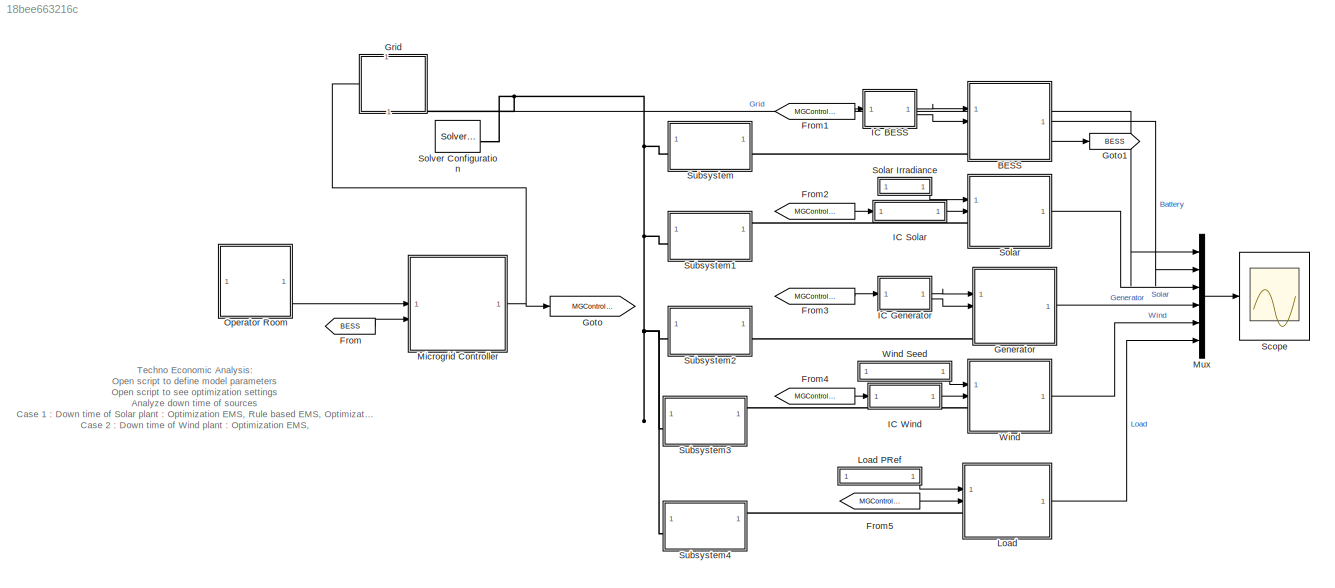
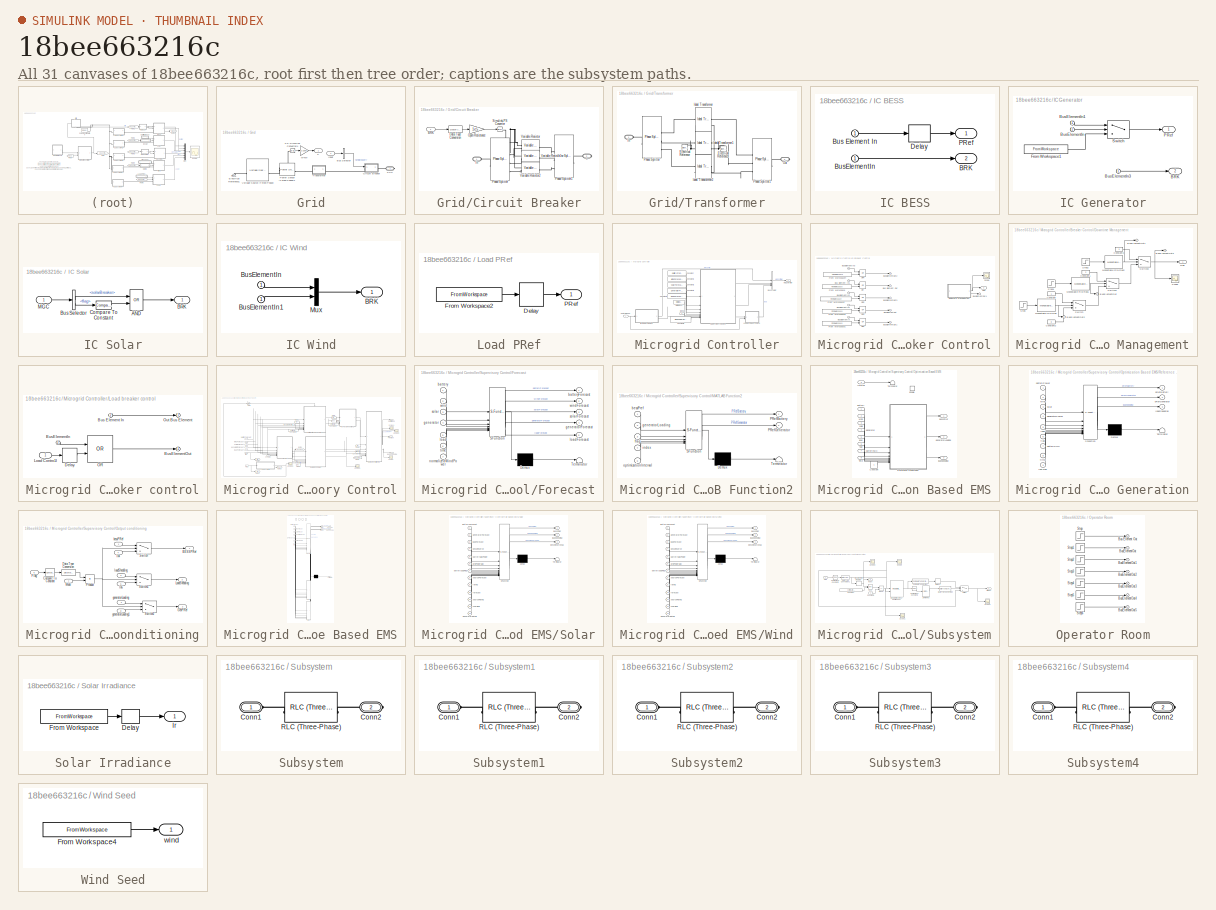
[diagram: thumbnail index - all 31 canvases of the model, root first then tree order]
MODEL slx_18bee663216c
KIND model
CONFIG AbsTol = auto
CONFIG EnableMultiTasking = off
CONFIG FixedStep = auto
CONFIG MaxStep = auto
CONFIG MinStep = auto
CONFIG PostLoadFcn = TechnoEconomicAnalysisInput
CONFIG RelTol = 1e-3
CONFIG SampleTimeConstraint = Unconstrained
CONFIG SolverName = VariableStepAuto
CONFIG StartTime = 0.0
CONFIG StopTime = 1500%tPeriod-1
BLOCK [SubSystem] BESS
  ReferencedSubsystem = Battery
  capacityRating = batteryStorage.capacityRating
  energyRating = batteryStorage.energyRating
  frequency = systemFrequency
  maxSOC = batteryStorage.maxSOC
  minSOC = batteryStorage.minSOC
  nominalVoltage = batteryStorage.nominalVoltage
  windingRatio = batteryStorage.windingRatio
BLOCK [From] From
  GotoTag = BESS
BLOCK [From] From1
  GotoTag = MGController
BLOCK [From] From2
  GotoTag = MGController
BLOCK [From] From3
  GotoTag = MGController
BLOCK [From] From4
  GotoTag = MGController
BLOCK [From] From5
  GotoTag = MGController
BLOCK [SubSystem] Generator
  ReferencedSubsystem = Generator
  genRating = generatorSet.rating
  polePairs = generatorSet.polePairs
  ratedFrequency = systemFrequency
  ratedVoltage = 690%generatorSet.voltage
  windingRatio = generatorSet.transformerRatio
BLOCK [Goto] Goto
  GotoTag = MGController
BLOCK [Goto] Goto1
  GotoTag = BESS
BLOCK [SubSystem] Grid
  PortSchema = {"entries":[{"content":{"sides":[{"content":{},"type":"ConnectorPlacement.EquallySpacedRectSide","uuid":"0399238b-9a5e-45cc-8714-91426baf51ba"},{"content":{"side":"RIGHT"},"type":"ConnectorPlacement.EquallySpacedRectSide","uuid":"f3b9b3de-730a-435e-bd02-72046c7f84f4"},{"content":{"connectorIds":["In1"],"side":"TOP"},"type":"ConnectorPlacement.EquallySpacedRectSide","uuid":"aa72cc88-43a3-4304-9895-...<+358ch>
BLOCK [BusSelector] Grid/Bus Selector
  OutputSignals = BrkControl.gridBreaker
BLOCK [SubSystem] Grid/Circuit Breaker
BLOCK [Inport] Grid/Circuit Breaker/BRK
BLOCK [DataTypeConversion] Grid/Circuit Breaker/Data Type Conversion
  OutDataTypeStr = double
  RndMeth = Floor
  SaturateOnIntegerOverflow = off
BLOCK [PMIOPort] Grid/Circuit Breaker/In
  Side = Left
BLOCK [Gain] Grid/Circuit Breaker/Open Resistance
  Gain = 1e5
BLOCK [Reference] Grid/Circuit Breaker/Phase Splitter  REF=ee_lib/Connectors &
References/Phase Splitter
  SourceBlock = ee_lib/Connectors &\nReferences/Phase Splitter
  SourceType = Phase Splitter
BLOCK [Reference] Grid/Circuit Breaker/Phase Splitter1  REF=ee_lib/Connectors &
References/Phase Splitter
  NameLocation = top
  SourceBlock = ee_lib/Connectors &\nReferences/Phase Splitter
  SourceType = Phase Splitter
BLOCK [Reference] Grid/Circuit Breaker/Simulink-PS Converter  REF=nesl_utility/Simulink-PS
Converter
  SourceBlock = nesl_utility/Simulink-PS\nConverter
  SourceType = Simulink-PS\nConverter
BLOCK [Reference] Grid/Circuit Breaker/Variable Resistor  REF=fl_lib/Electrical/Electrical Elements/Variable Resistor
  SourceBlock = fl_lib/Electrical/Electrical Elements/Variable Resistor
  SourceType = Variable Resistor
BLOCK [Reference] Grid/Circuit Breaker/Variable Resistor1  REF=fl_lib/Electrical/Electrical Elements/Variable Resistor
  SourceBlock = fl_lib/Electrical/Electrical Elements/Variable Resistor
  SourceType = Variable Resistor
BLOCK [Reference] Grid/Circuit Breaker/Variable Resistor2  REF=fl_lib/Electrical/Electrical Elements/Variable Resistor
  SourceBlock = fl_lib/Electrical/Electrical Elements/Variable Resistor
  SourceType = Variable Resistor
BLOCK [PMIOPort] Grid/Circuit Breaker/~
  Port = 2
  Side = Right
BLOCK [Reference] Grid/Electrical Reference1  REF=fl_lib/Electrical/Electrical Elements/Electrical Reference
  NameLocation = right
  SourceBlock = fl_lib/Electrical/Electrical Elements/Electrical Reference
  SourceType = Electrical Reference
BLOCK [Inport] Grid/Input
BLOCK [Outport] Grid/P
BLOCK [PMIOPort] Grid/PCC
  Side = Right
BLOCK [Reference] Grid/PS-Simulink Converter4  REF=nesl_utility/PS-Simulink
Converter
  SourceBlock = nesl_utility/PS-Simulink\nConverter
  SourceType = PS-Simulink\nConverter
BLOCK [Reference] Grid/Power Sensor (Three-Phase)1  REF=ee_lib/Sensors &
Transducers/Power Sensor
(Three-Phase)
  SourceBlock = ee_lib/Sensors &\nTransducers/Power Sensor\n(Three-Phase)
  SourceType = Power Sensor\n(Three-Phase)
BLOCK [SubSystem] Grid/Transformer
BLOCK [Reference] Grid/Transformer/Electrical Reference  REF=fl_lib/Electrical/Electrical Elements/Electrical Reference
  NameLocation = right
  SourceBlock = fl_lib/Electrical/Electrical Elements/Electrical Reference
  SourceType = Electrical Reference
BLOCK [Reference] Grid/Transformer/Electrical Reference1  REF=fl_lib/Electrical/Electrical Elements/Electrical Reference
  NameLocation = right
  SourceBlock = fl_lib/Electrical/Electrical Elements/Electrical Reference
  SourceType = Electrical Reference
BLOCK [Reference] Grid/Transformer/Ideal Transformer  REF=fl_lib/Electrical/Electrical Elements/Ideal Transformer
  SourceBlock = fl_lib/Electrical/Electrical Elements/Ideal Transformer
  SourceType = Ideal Transformer
BLOCK [Reference] Grid/Transformer/Ideal Transformer1  REF=fl_lib/Electrical/Electrical Elements/Ideal Transformer
  SourceBlock = fl_lib/Electrical/Electrical Elements/Ideal Transformer
  SourceType = Ideal Transformer
BLOCK [Reference] Grid/Transformer/Ideal Transformer2  REF=fl_lib/Electrical/Electrical Elements/Ideal Transformer
  SourceBlock = fl_lib/Electrical/Electrical Elements/Ideal Transformer
  SourceType = Ideal Transformer
BLOCK [PMIOPort] Grid/Transformer/In
  Side = Left
BLOCK [PMIOPort] Grid/Transformer/Out
  Port = 2
  Side = Right
BLOCK [Reference] Grid/Transformer/Phase Splitter  REF=ee_lib/Connectors &
References/Phase Splitter
  SourceBlock = ee_lib/Connectors &\nReferences/Phase Splitter
  SourceType = Phase Splitter
BLOCK [Reference] Grid/Transformer/Phase Splitter1  REF=ee_lib/Connectors &
References/Phase Splitter
  NameLocation = top
  SourceBlock = ee_lib/Connectors &\nReferences/Phase Splitter
  SourceType = Phase Splitter
BLOCK [Reference] Grid/Voltage Source (Three-Phase)  REF=ee_lib/Sources/Voltage
Source
(Three-Phase)
  SourceBlock = ee_lib/Sources/Voltage\nSource\n(Three-Phase)
  SourceType = Voltage\nSource\n(Three-Phase)
BLOCK [Gain] Grid/W-kW
  Gain = 1/1000
BLOCK [SubSystem] IC BESS
BLOCK [Outport] IC BESS/BRK
  Port = 2
BLOCK [Inport] IC BESS/Bus Element In
BLOCK [Inport] IC BESS/BusElementIn
BLOCK [Delay] IC BESS/Delay
  InitialCondition = 0.1
  InputPortMap = u0
BLOCK [Outport] IC BESS/PRef
BLOCK [SubSystem] IC Generator
BLOCK [Outport] IC Generator/BRK
  Port = 2
BLOCK [Inport] IC Generator/BusElementIn
BLOCK [Inport] IC Generator/BusElementIn1
BLOCK [Inport] IC Generator/BusElementIn3
BLOCK [FromWorkspace] IC Generator/From Workspace1
  VariableName = generatorProfile(1:nSamples,1:2)
BLOCK [Outport] IC Generator/PRef
BLOCK [Switch] IC Generator/Switch
  Criteria = u2 > Threshold
  InputSameDT = off
  SaturateOnIntegerOverflow = off
BLOCK [SubSystem] IC Solar
BLOCK [Logic] IC Solar/AND
  AllPortsSameDT = off
  Operator = OR
  OutDataTypeStr = boolean
BLOCK [Outport] IC Solar/BRK
BLOCK [BusSelector] IC Solar/Bus Selector
  OutputSignals = BrkControl.solarBreaker,BrkControl.downTime.flag
BLOCK [Reference] IC Solar/Compare To Constant  REF=simulink/Logic and Bit
Operations/Compare
To Constant
  SourceBlock = simulink/Logic and Bit\nOperations/Compare\nTo Constant
  SourceType = Compare To Constant
BLOCK [Inport] IC Solar/MGC
BLOCK [SubSystem] IC Wind
BLOCK [Outport] IC Wind/BRK
BLOCK [Inport] IC Wind/BusElementIn
BLOCK [Inport] IC Wind/BusElementIn1
BLOCK [Mux] IC Wind/Mux
  DisplayOption = bar
  Inputs = 2
BLOCK [SubSystem] Load
  ReferencedSubsystem = Load
  windingRatio = loadParam.transformerRatio
BLOCK [SubSystem] Load PRef
  NameLocation = top
BLOCK [Delay] Load PRef/Delay
  DelayLength = 1
  InputPortMap = u0
BLOCK [FromWorkspace] Load PRef/From Workspace2
  VariableName = loadForecast(1:nSamples,1:2)
BLOCK [Outport] Load PRef/PRef
BLOCK [SubSystem] Microgrid Controller
  ShowPortLabels = none
BLOCK [Inport] Microgrid Controller/BESS
  Port = 2
BLOCK [SubSystem] Microgrid Controller/Breaker Control
BLOCK [Inport] Microgrid Controller/Breaker Control/Bus Element In1
BLOCK [Outport] Microgrid Controller/Breaker Control/Bus Element Out
BLOCK [Inport] Microgrid Controller/Breaker Control/BusElementIn
BLOCK [Inport] Microgrid Controller/Breaker Control/BusElementIn1
BLOCK [Inport] Microgrid Controller/Breaker Control/BusElementIn2
BLOCK [Inport] Microgrid Controller/Breaker Control/BusElementIn3
BLOCK [Outport] Microgrid Controller/Breaker Control/BusElementOut
BLOCK [Outport] Microgrid Controller/Breaker Control/BusElementOut1
BLOCK [Outport] Microgrid Controller/Breaker Control/BusElementOut2
BLOCK [Outport] Microgrid Controller/Breaker Control/BusElementOut3
BLOCK [Outport] Microgrid Controller/Breaker Control/BusElementOut4
BLOCK [SubSystem] Microgrid Controller/Breaker Control/Downtime Management
BLOCK [Outport] Microgrid Controller/Breaker Control/Downtime Management/BusElementOut
  Port = 2
BLOCK [Outport] Microgrid Controller/Breaker Control/Downtime Management/BusElementOut1
  Port = 2
BLOCK [Outport] Microgrid Controller/Breaker Control/Downtime Management/BusElementOut2
  Port = 2
BLOCK [Outport] Microgrid Controller/Breaker Control/Downtime Management/BusElementOut3
  Port = 2
BLOCK [Constant] Microgrid Controller/Breaker Control/Downtime Management/Constant
BLOCK [Constant] Microgrid Controller/Breaker Control/Downtime Management/Constant1
  Value = 2
BLOCK [Constant] Microgrid Controller/Breaker Control/Downtime Management/Constant2
  Value = 0
BLOCK [Constant] Microgrid Controller/Breaker Control/Downtime Management/Constant3
  Value = 3
BLOCK [Outport] Microgrid Controller/Breaker Control/Downtime Management/Flag
BLOCK [Reference] Microgrid Controller/Breaker Control/Downtime Management/Monostable Flip-Flop  REF=eeGeneralControl/Monostable Flip-Flop
  LibrarySourceBlock = ee_sl_lib/General Control/Monostable Flip-Flop
  SourceBlock = eeGeneralControl/Monostable Flip-Flop
  SourceType = Monostable Flip-Flop
BLOCK [Reference] Microgrid Controller/Breaker Control/Downtime Management/Monostable Flip-Flop1  REF=eeGeneralControl/Monostable Flip-Flop
  LibrarySourceBlock = ee_sl_lib/General Control/Monostable Flip-Flop
  SourceBlock = eeGeneralControl/Monostable Flip-Flop
  SourceType = Monostable Flip-Flop
BLOCK [Reference] Microgrid Controller/Breaker Control/Downtime Management/Monostable Flip-Flop2  REF=eeGeneralControl/Monostable Flip-Flop
  LibrarySourceBlock = ee_sl_lib/General Control/Monostable Flip-Flop
  SourceBlock = eeGeneralControl/Monostable Flip-Flop
  SourceType = Monostable Flip-Flop
BLOCK [Scope] Microgrid Controller/Breaker Control/Downtime Management/Scope
  ActiveDisplayYMaximum = 2.25
  ActiveDisplayYMinimum = -0.25
  DataLoggingVariableName = ScopeData19
  Floating = off
  GraphicalSettings = {"GraphicalSettings":{"LegacySettings":true,"Style":{"AxesScalingProperties":{"ScaleAxesLimitsAtStop":false},"Style":{"AxesColor":"[0 0 0]","ChannelNames":[""],"ColorOrder":"[1 0.909803921568627 0.392156862745098;0.149019607843137 0.549019607843137 0.866666666666667;0.96078431372549 0.466666666666667 0.16078431372549;0.286274509803922 0.858823529411765 0.250980392156863;0.752941176470588 0.3607843...<+513ch>  <repeated x7 — deduplicated; at blocks: Scope, Scope1, Scope2, Scope3>
  MultipleDisplayCache = [{"MaxYLimMag":2.25,"MaxYLimReal":2.25,"MinYLimMag":0,"MinYLimReal":-0.25,"PlotAsMagnitudePhase":false,"ShowGrid":true,"ShowLegend":false,"Title":"%<SignalLabel>","YLabel":""}]
  NumInputPorts = 1
  WasSavedAsWebScope = on
  WindowPosition = [488 221 560 421]
BLOCK [Step] Microgrid Controller/Breaker Control/Downtime Management/Step
  SampleTime = 0
  Time = windFarm.downTime
BLOCK [Step] Microgrid Controller/Breaker Control/Downtime Management/Step1
  SampleTime = 0
  Time = solarPV.downTime
BLOCK [Step] Microgrid Controller/Breaker Control/Downtime Management/Step2
  SampleTime = 0
  Time = generatorSet.downTime
BLOCK [Switch] Microgrid Controller/Breaker Control/Downtime Management/Switch
  Criteria = u2 > Threshold
  InputSameDT = off
  SaturateOnIntegerOverflow = off
BLOCK [Switch] Microgrid Controller/Breaker Control/Downtime Management/Switch1
  Criteria = u2 > Threshold
  InputSameDT = off
  SaturateOnIntegerOverflow = off
BLOCK [Switch] Microgrid Controller/Breaker Control/Downtime Management/Switch2
  Criteria = u2 > Threshold
  InputSameDT = off
  SaturateOnIntegerOverflow = off
BLOCK [Outport] Microgrid Controller/Breaker Control/Flag
  Port = 2
BLOCK [FromWorkspace] Microgrid Controller/Breaker Control/From Workspace
  VariableName = solarPV.breakerProfile(1:tPeriod,1:2)
BLOCK [FromWorkspace] Microgrid Controller/Breaker Control/From Workspace1
  VariableName = windFarm.breakerProfile(1:tPeriod,1:2)
BLOCK [FromWorkspace] Microgrid Controller/Breaker Control/From Workspace2
  VariableName = generatorSet.breakerProfile(1:tPeriod,1:2)
BLOCK [FromWorkspace] Microgrid Controller/Breaker Control/From Workspace3
  VariableName = batteryStorage.breakerProfile(1:tPeriod,1:2)
BLOCK [FromWorkspace] Microgrid Controller/Breaker Control/From Workspace4
  VariableName = mainGrid.breakerProfile(1:tPeriod,1:2)
BLOCK [Logic] Microgrid Controller/Breaker Control/OR
  AllPortsSameDT = off
  Operator = OR
  OutDataTypeStr = boolean
BLOCK [Logic] Microgrid Controller/Breaker Control/OR1
  AllPortsSameDT = off
  Operator = OR
  OutDataTypeStr = boolean
BLOCK [Logic] Microgrid Controller/Breaker Control/OR2
  AllPortsSameDT = off
  Operator = OR
  OutDataTypeStr = boolean
BLOCK [Logic] Microgrid Controller/Breaker Control/OR3
  AllPortsSameDT = off
  Operator = OR
  OutDataTypeStr = boolean
BLOCK [Logic] Microgrid Controller/Breaker Control/OR4
  AllPortsSameDT = off
  Operator = OR
  OutDataTypeStr = boolean
BLOCK [Scope] Microgrid Controller/Breaker Control/Scope
  ActiveDisplayYMaximum = 1
  ActiveDisplayYMinimum = -1
  DataLoggingVariableName = ScopeData17
  Floating = off
  GraphicalSettings = {"GraphicalSettings":{"LegacySettings":true,"Style":{"Style":{"AxesColor":"[0 0 0]","ChannelNames":[""],"ColorOrder":"[1 0.909803921568627 0.392156862745098;0.149019607843137 0.549019607843137 0.866666666666667;0.96078431372549 0.466666666666667 0.16078431372549;0.286274509803922 0.858823529411765 0.250980392156863;0.752941176470588 0.36078431372549 0.984313725490196;0.423529411764706 0.9568627450...<+432ch>
  MultipleDisplayCache = [{"MaxYLimMag":1,"MaxYLimReal":1,"MinYLimMag":0,"MinYLimReal":-1,"PlotAsMagnitudePhase":false,"ShowGrid":true,"ShowLegend":false,"Title":"%<SignalLabel>","YLabel":""}]
  NumInputPorts = 1
  WasSavedAsWebScope = on
  WindowPosition = [488 221 560 421]
BLOCK [BusCreator] Microgrid Controller/Bus Creator
  DisplayOption = bar
  InheritFromInputs = on
  Inputs = 4
BLOCK [Constant] Microgrid Controller/Constant
  Value = batteryProfile(:,2)
BLOCK [Constant] Microgrid Controller/Constant1
  Value = windForecast(:,2)
BLOCK [Constant] Microgrid Controller/Constant2
  Value = solarForecast(:,2)
BLOCK [Constant] Microgrid Controller/Constant3
  Value = generatorProfile(:,2)
BLOCK [Constant] Microgrid Controller/Constant4
  Value = loadForecast(:,2)
BLOCK [Constant] Microgrid Controller/Constant5
  Value = windPowerEst(:,2)
BLOCK [Inport] Microgrid Controller/Control Room
BLOCK [DigitalClock] Microgrid Controller/Digital Clock
BLOCK [SubSystem] Microgrid Controller/Load breaker control
BLOCK [Inport] Microgrid Controller/Load breaker control/Bus Element In
  Port = 2
BLOCK [Inport] Microgrid Controller/Load breaker control/BusElementIn
  Port = 2
BLOCK [Outport] Microgrid Controller/Load breaker control/BusElementOut
BLOCK [Delay] Microgrid Controller/Load breaker control/Delay
  DelayLength = 1
  InputPortMap = u0
BLOCK [Inport] Microgrid Controller/Load breaker control/Load Contro1l
BLOCK [Logic] Microgrid Controller/Load breaker control/OR
  AllPortsSameDT = off
  IconShape = distinctive
  Operator = OR
  OutDataTypeStr = boolean
BLOCK [Outport] Microgrid Controller/Load breaker control/Out Bus Element
BLOCK [Outport] Microgrid Controller/MGController
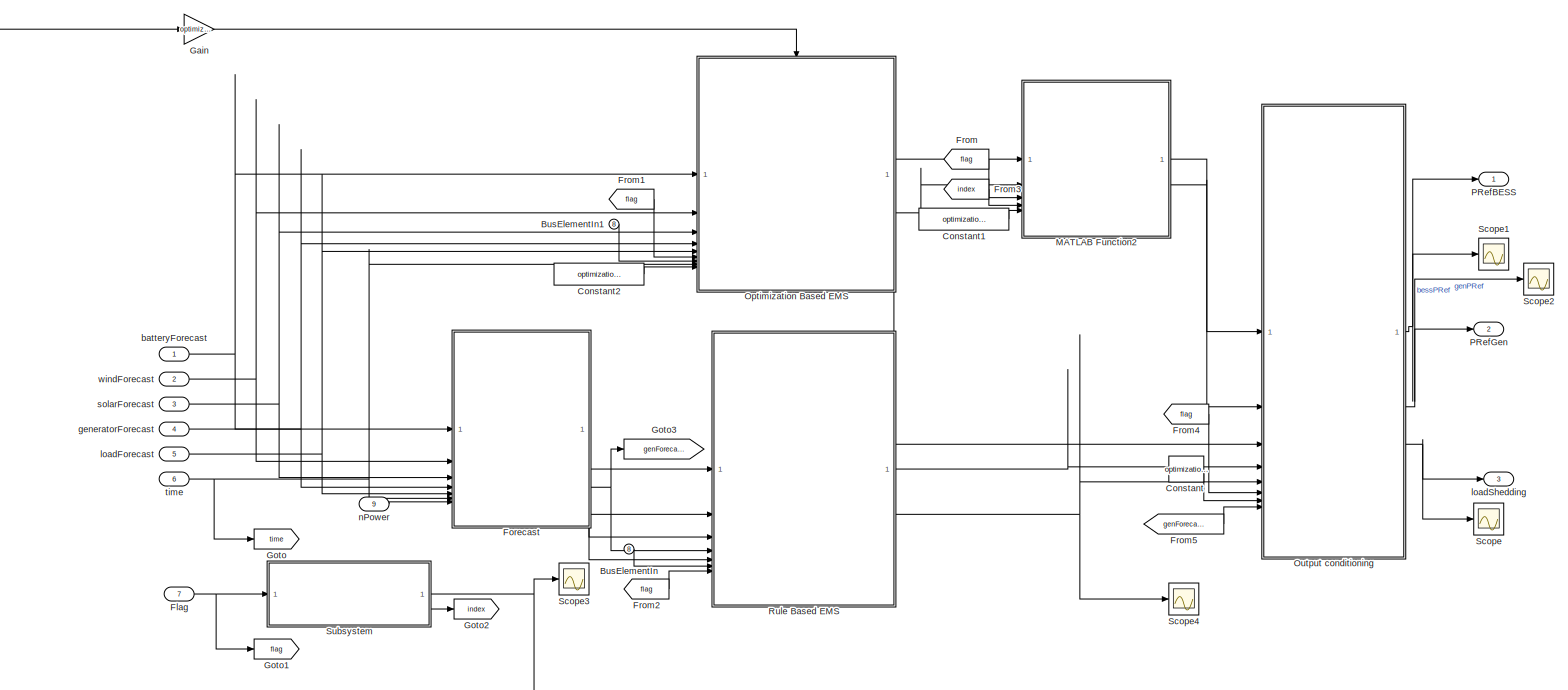
[diagram: Microgrid Controller/Supervisory Control - part 1/1, most of the canvas]
BLOCK [SubSystem] Microgrid Controller/Supervisory Control
  TreatAsAtomicUnit = on
BLOCK [Inport] Microgrid Controller/Supervisory Control/BusElementIn
  Port = 8
BLOCK [Inport] Microgrid Controller/Supervisory Control/BusElementIn1
  Port = 8
BLOCK [Constant] Microgrid Controller/Supervisory Control/Constant
  Value = optimizationMode
BLOCK [Constant] Microgrid Controller/Supervisory Control/Constant1
  SampleTime = -1
  Value = optimizationInterval
  VectorParams1D = off
BLOCK [Constant] Microgrid Controller/Supervisory Control/Constant2
  SampleTime = -1
  Value = optimizationInterval
  VectorParams1D = off
BLOCK [Inport] Microgrid Controller/Supervisory Control/Flag
  Port = 7
BLOCK [SubSystem] Microgrid Controller/Supervisory Control/Forecast
  ErrorFcn = Stateflow.Translate.translate
  PermitHierarchicalResolution = ExplicitOnly
  SFBlockType = MATLAB Function
  TreatAsAtomicUnit = on
BLOCK [Demux] Microgrid Controller/Supervisory Control/Forecast/ Demux 
  Outputs = 1
BLOCK [S-Function] Microgrid Controller/Supervisory Control/Forecast/ SFunction 
  EnableBusSupport = off
  FunctionName = sf_sfun
  PortCounts = [7 6]
  SFcnIsStateOwnerBlock = off
  SFunctionDeploymentMode = off
  Tag = Stateflow S-Function 2
BLOCK [Terminator] Microgrid Controller/Supervisory Control/Forecast/ Terminator 
BLOCK [Inport] Microgrid Controller/Supervisory Control/Forecast/battery
BLOCK [Outport] Microgrid Controller/Supervisory Control/Forecast/batteryForecast
BLOCK [Inport] Microgrid Controller/Supervisory Control/Forecast/generator
  Port = 4
BLOCK [Outport] Microgrid Controller/Supervisory Control/Forecast/generatorForecast
  Port = 4
BLOCK [Inport] Microgrid Controller/Supervisory Control/Forecast/load
  Port = 5
BLOCK [Outport] Microgrid Controller/Supervisory Control/Forecast/loadForecast
  Port = 5
BLOCK [Inport] Microgrid Controller/Supervisory Control/Forecast/normalizedWindPower
  Port = 7
BLOCK [Inport] Microgrid Controller/Supervisory Control/Forecast/solar
  Port = 3
BLOCK [Outport] Microgrid Controller/Supervisory Control/Forecast/solarForecast
  Port = 3
BLOCK [Inport] Microgrid Controller/Supervisory Control/Forecast/time
  Port = 6
BLOCK [Inport] Microgrid Controller/Supervisory Control/Forecast/wind
  Port = 2
BLOCK [Outport] Microgrid Controller/Supervisory Control/Forecast/windForecast
  Port = 2
BLOCK [From] Microgrid Controller/Supervisory Control/From
  GotoTag = flag
BLOCK [From] Microgrid Controller/Supervisory Control/From1
  GotoTag = flag
BLOCK [From] Microgrid Controller/Supervisory Control/From2
  GotoTag = flag
BLOCK [From] Microgrid Controller/Supervisory Control/From3
  GotoTag = index
BLOCK [From] Microgrid Controller/Supervisory Control/From4
  GotoTag = flag
BLOCK [From] Microgrid Controller/Supervisory Control/From5
  GotoTag = genForecast
BLOCK [Gain] Microgrid Controller/Supervisory Control/Gain
  Gain = optimizationMode
BLOCK [Goto] Microgrid Controller/Supervisory Control/Goto
  GotoTag = time
BLOCK [Goto] Microgrid Controller/Supervisory Control/Goto1
  GotoTag = flag
BLOCK [Goto] Microgrid Controller/Supervisory Control/Goto2
  GotoTag = index
BLOCK [Goto] Microgrid Controller/Supervisory Control/Goto3
  GotoTag = genForecast
BLOCK [SubSystem] Microgrid Controller/Supervisory Control/MATLAB Function2
  ErrorFcn = Stateflow.Translate.translate
  PermitHierarchicalResolution = ExplicitOnly
  SFBlockType = MATLAB Function
  TreatAsAtomicUnit = on
BLOCK [Demux] Microgrid Controller/Supervisory Control/MATLAB Function2/ Demux 
  Outputs = 1
BLOCK [S-Function] Microgrid Controller/Supervisory Control/MATLAB Function2/ SFunction 
  EnableBusSupport = off
  FunctionName = sf_sfun
  PortCounts = [5 3]
  SFcnIsStateOwnerBlock = off
  SFunctionDeploymentMode = off
  Tag = Stateflow S-Function 4
BLOCK [Terminator] Microgrid Controller/Supervisory Control/MATLAB Function2/ Terminator 
BLOCK [Outport] Microgrid Controller/Supervisory Control/MATLAB Function2/PRefBattery
BLOCK [Outport] Microgrid Controller/Supervisory Control/MATLAB Function2/PRefGenerator
  Port = 2
BLOCK [Inport] Microgrid Controller/Supervisory Control/MATLAB Function2/bessPref
BLOCK [Inport] Microgrid Controller/Supervisory Control/MATLAB Function2/flag
  Port = 3
BLOCK [Inport] Microgrid Controller/Supervisory Control/MATLAB Function2/generatorLoading
  Port = 2
BLOCK [Inport] Microgrid Controller/Supervisory Control/MATLAB Function2/index
  Port = 4
BLOCK [Inport] Microgrid Controller/Supervisory Control/MATLAB Function2/optimizationInterval
  Port = 5
BLOCK [SubSystem] Microgrid Controller/Supervisory Control/Optimization Based EMS
BLOCK [Constant] Microgrid Controller/Supervisory Control/Optimization Based EMS/Constant
BLOCK [EnablePort] Microgrid Controller/Supervisory Control/Optimization Based EMS/Enable
BLOCK [Inport] Microgrid Controller/Supervisory Control/Optimization Based EMS/Interval
  Port = 9
BLOCK [SubSystem] Microgrid Controller/Supervisory Control/Optimization Based EMS/Reference Generation
  ErrorFcn = Stateflow.Translate.translate
  PermitHierarchicalResolution = ExplicitOnly
  SFBlockType = MATLAB Function
  TreatAsAtomicUnit = on
BLOCK [Demux] Microgrid Controller/Supervisory Control/Optimization Based EMS/Reference Generation/ Demux 
  Outputs = 1
BLOCK [S-Function] Microgrid Controller/Supervisory Control/Optimization Based EMS/Reference Generation/ SFunction 
  EnableBusSupport = off
  FunctionName = sf_sfun
  Parameters = batteryEnergyRating,batteryMaxPower,batteryMaxSOC,batteryMinPower,batteryMinSOC,fuelCost,generatorRating,gridCost,gridMaxPower,gridMinPower,solarRating,windRating
  PortCounts = [9 4]
  SFcnIsStateOwnerBlock = off
  SFunctionDeploymentMode = off
  Tag = Stateflow S-Function 8
BLOCK [Terminator] Microgrid Controller/Supervisory Control/Optimization Based EMS/Reference Generation/ Terminator 
BLOCK [Inport] Microgrid Controller/Supervisory Control/Optimization Based EMS/Reference Generation/batteryPower
BLOCK [Inport] Microgrid Controller/Supervisory Control/Optimization Based EMS/Reference Generation/batterySOC
  Port = 7
BLOCK [Inport] Microgrid Controller/Supervisory Control/Optimization Based EMS/Reference Generation/flag
  Port = 6
BLOCK [Inport] Microgrid Controller/Supervisory Control/Optimization Based EMS/Reference Generation/fuelType
  Port = 9
BLOCK [Inport] Microgrid Controller/Supervisory Control/Optimization Based EMS/Reference Generation/generatorPower
  Port = 4
BLOCK [Inport] Microgrid Controller/Supervisory Control/Optimization Based EMS/Reference Generation/load
  Port = 5
BLOCK [Outport] Microgrid Controller/Supervisory Control/Optimization Based EMS/Reference Generation/loadShedding
  Port = 3
BLOCK [Outport] Microgrid Controller/Supervisory Control/Optimization Based EMS/Reference Generation/pRefBattery
BLOCK [Outport] Microgrid Controller/Supervisory Control/Optimization Based EMS/Reference Generation/pRefGenerator
  Port = 2
BLOCK [Inport] Microgrid Controller/Supervisory Control/Optimization Based EMS/Reference Generation/solar
  Port = 3
BLOCK [Inport] Microgrid Controller/Supervisory Control/Optimization Based EMS/Reference Generation/time
  Port = 8
BLOCK [Inport] Microgrid Controller/Supervisory Control/Optimization Based EMS/Reference Generation/wind
  Port = 2
BLOCK [Terminator] Microgrid Controller/Supervisory Control/Optimization Based EMS/Terminator
BLOCK [Inport] Microgrid Controller/Supervisory Control/Optimization Based EMS/Time
  Port = 8
BLOCK [Inport] Microgrid Controller/Supervisory Control/Optimization Based EMS/battery
BLOCK [Inport] Microgrid Controller/Supervisory Control/Optimization Based EMS/batterySOC
  Port = 7
BLOCK [Outport] Microgrid Controller/Supervisory Control/Optimization Based EMS/bessPRef
BLOCK [Inport] Microgrid Controller/Supervisory Control/Optimization Based EMS/flag
  Port = 6
BLOCK [Inport] Microgrid Controller/Supervisory Control/Optimization Based EMS/generator
  Port = 4
BLOCK [Outport] Microgrid Controller/Supervisory Control/Optimization Based EMS/generatorLoading
  Port = 2
BLOCK [Inport] Microgrid Controller/Supervisory Control/Optimization Based EMS/load
  Port = 5
BLOCK [Outport] Microgrid Controller/Supervisory Control/Optimization Based EMS/loadShedding
  Port = 3
BLOCK [Inport] Microgrid Controller/Supervisory Control/Optimization Based EMS/solar
  Port = 3
BLOCK [Inport] Microgrid Controller/Supervisory Control/Optimization Based EMS/wind
  Port = 2
BLOCK [SubSystem] Microgrid Controller/Supervisory Control/Output conditioning
BLOCK [Outport] Microgrid Controller/Supervisory Control/Output conditioning/BESSPRef
BLOCK [Reference] Microgrid Controller/Supervisory Control/Output conditioning/Compare To Constant  REF=simulink/Logic and Bit
Operations/Compare
To Constant
  SourceBlock = simulink/Logic and Bit\nOperations/Compare\nTo Constant
  SourceType = Compare To Constant
BLOCK [DataTypeConversion] Microgrid Controller/Supervisory Control/Output conditioning/Data Type Conversion
  OutDataTypeStr = double
  RndMeth = Floor
  SaturateOnIntegerOverflow = off
BLOCK [Inport] Microgrid Controller/Supervisory Control/Output conditioning/Flag
  Port = 6
BLOCK [Outport] Microgrid Controller/Supervisory Control/Output conditioning/GenPRef
  Port = 2
BLOCK [Inport] Microgrid Controller/Supervisory Control/Output conditioning/In4
  Port = 4
BLOCK [Inport] Microgrid Controller/Supervisory Control/Output conditioning/In6
  Port = 5
BLOCK [Outport] Microgrid Controller/Supervisory Control/Output conditioning/LoadShedding
  Port = 3
BLOCK [Inport] Microgrid Controller/Supervisory Control/Output conditioning/Mode
  Port = 7
BLOCK [Product] Microgrid Controller/Supervisory Control/Output conditioning/Product
BLOCK [Switch] Microgrid Controller/Supervisory Control/Output conditioning/Switch
  Criteria = u2 > Threshold
  InputSameDT = off
  SaturateOnIntegerOverflow = off
BLOCK [Switch] Microgrid Controller/Supervisory Control/Output conditioning/Switch1
  Criteria = u2 > Threshold
  InputSameDT = off
  SaturateOnIntegerOverflow = off
BLOCK [Switch] Microgrid Controller/Supervisory Control/Output conditioning/Switch2
  Criteria = u2 > Threshold
  InputSameDT = off
  SaturateOnIntegerOverflow = off
BLOCK [Inport] Microgrid Controller/Supervisory Control/Output conditioning/bessPRef
BLOCK [Inport] Microgrid Controller/Supervisory Control/Output conditioning/generatorLoading
  Port = 2
BLOCK [Inport] Microgrid Controller/Supervisory Control/Output conditioning/generatorLoading1
  Port = 8
BLOCK [Inport] Microgrid Controller/Supervisory Control/Output conditioning/loadShedding
  Port = 3
BLOCK [Outport] Microgrid Controller/Supervisory Control/PRefBESS
BLOCK [Outport] Microgrid Controller/Supervisory Control/PRefGen
  Port = 2
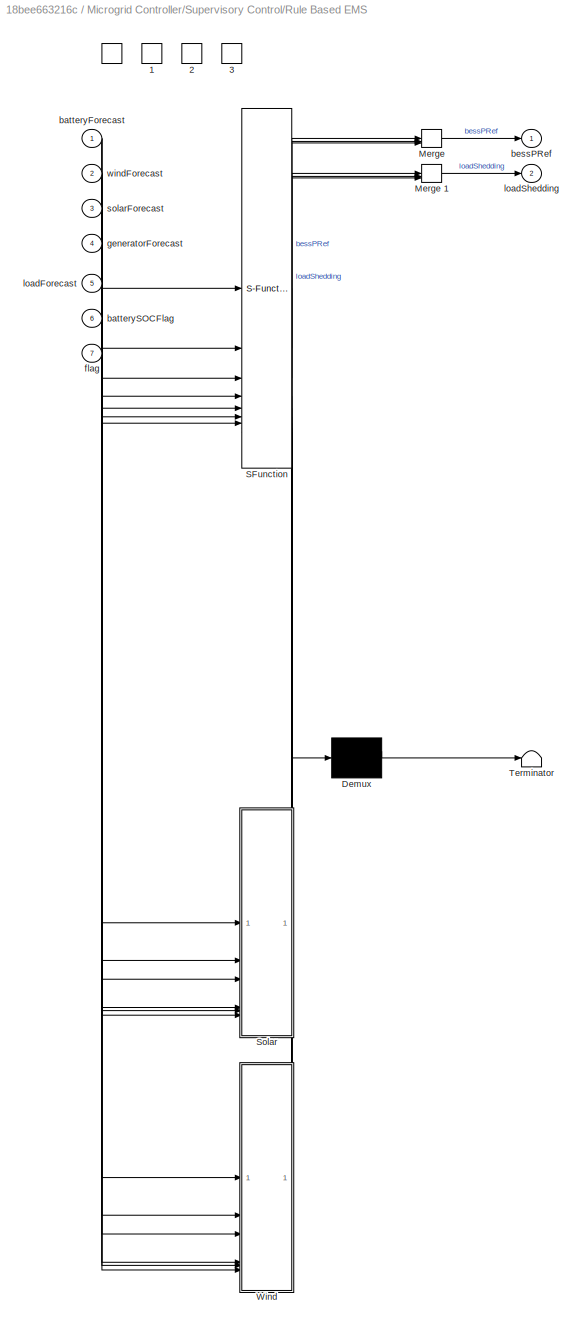
BLOCK [SubSystem] Microgrid Controller/Supervisory Control/Rule Based EMS
  ErrorFcn = Stateflow.Translate.translate
  PermitHierarchicalResolution = ExplicitOnly
  SFBlockType = Chart
  TreatAsAtomicUnit = on
BLOCK [DataStoreMemory] Microgrid Controller/Supervisory Control/Rule Based EMS/ 
  DataStoreName = bessReserve
  Dimensions = [1]
  OutDataTypeStr = double
  ShowAdditionalParam = off
  SignalType = real
BLOCK [DataStoreMemory] Microgrid Controller/Supervisory Control/Rule Based EMS/ 1
  DataStoreName = bessReserveCal
  Dimensions = [1]
  OutDataTypeStr = double
  ShowAdditionalParam = off
  SignalType = real
BLOCK [DataStoreMemory] Microgrid Controller/Supervisory Control/Rule Based EMS/ 2
  DataStoreName = charging
  Dimensions = [1]
  OutDataTypeStr = boolean
  ShowAdditionalParam = off
  SignalType = real
BLOCK [DataStoreMemory] Microgrid Controller/Supervisory Control/Rule Based EMS/ 3
  DataStoreName = excessLoad
  Dimensions = [1]
  OutDataTypeStr = double
  ShowAdditionalParam = off
  SignalType = real
BLOCK [Demux] Microgrid Controller/Supervisory Control/Rule Based EMS/ Demux 
  Outputs = 1
BLOCK [Merge] Microgrid Controller/Supervisory Control/Rule Based EMS/ Merge 
  Inputs = 3
BLOCK [Merge] Microgrid Controller/Supervisory Control/Rule Based EMS/ Merge 1
  Inputs = 3
BLOCK [S-Function] Microgrid Controller/Supervisory Control/Rule Based EMS/ SFunction 
  EnableBusSupport = off
  FunctionName = sf_sfun
  Parameters = batteryMaxPower,generatorRating,gridPowerMax,solarRating,windRating
  PortCounts = [9 17]
  SFcnIsStateOwnerBlock = off
  SFunctionDeploymentMode = off
  Tag = Stateflow S-Function 3
BLOCK [Terminator] Microgrid Controller/Supervisory Control/Rule Based EMS/ Terminator 
BLOCK [SubSystem] Microgrid Controller/Supervisory Control/Rule Based EMS/Solar
  CopyFcn = set_param(gcbh, 'DSMNames', '', 'DSMValues', '', 'CopyFcn', '')
  DSMNames = excessLoad
  DSMValues = excessLoad
  ErrorFcn = Stateflow.Translate.translate
  PermitHierarchicalResolution = ExplicitOnly
  SFBlockType = Chart
  TreatAsAtomicUnit = on
BLOCK [Demux] Microgrid Controller/Supervisory Control/Rule Based EMS/Solar/ Demux 
  Outputs = 1
BLOCK [S-Function] Microgrid Controller/Supervisory Control/Rule Based EMS/Solar/ SFunction 
  EnableBusSupport = off
  FunctionName = sf_sfun
  PortCounts = [13 4]
  SFcnIsStateOwnerBlock = off
  SFunctionDeploymentMode = off
  Tag = Stateflow S-Function 1
BLOCK [Terminator] Microgrid Controller/Supervisory Control/Rule Based EMS/Solar/ Terminator 
BLOCK [Inport] Microgrid Controller/Supervisory Control/Rule Based EMS/Solar/batteryForecast
BLOCK [Inport] Microgrid Controller/Supervisory Control/Rule Based EMS/Solar/batteryMaxPower
  Port = 5
BLOCK [Inport] Microgrid Controller/Supervisory Control/Rule Based EMS/Solar/batterySOCFlag
  Port = 7
BLOCK [Outport] Microgrid Controller/Supervisory Control/Rule Based EMS/Solar/bessPRef
BLOCK [Inport] Microgrid Controller/Supervisory Control/Rule Based EMS/Solar/bessReserve
  Port = 4
BLOCK [Outport] Microgrid Controller/Supervisory Control/Rule Based EMS/Solar/bessReserveCal
  Port = 3
BLOCK [Inport] Microgrid Controller/Supervisory Control/Rule Based EMS/Solar/charging
  Port = 12
BLOCK [Inport] Microgrid Controller/Supervisory Control/Rule Based EMS/Solar/forecast
  Port = 10
BLOCK [Inport] Microgrid Controller/Supervisory Control/Rule Based EMS/Solar/generatorForecast
  Port = 2
BLOCK [Inport] Microgrid Controller/Supervisory Control/Rule Based EMS/Solar/generatorRating
  Port = 13
BLOCK [Inport] Microgrid Controller/Supervisory Control/Rule Based EMS/Solar/gridPowerMax
  Port = 6
BLOCK [Inport] Microgrid Controller/Supervisory Control/Rule Based EMS/Solar/loadForecast
  Port = 3
BLOCK [Outport] Microgrid Controller/Supervisory Control/Rule Based EMS/Solar/loadShedding
  Port = 2
BLOCK [Inport] Microgrid Controller/Supervisory Control/Rule Based EMS/Solar/rating
  Port = 9
BLOCK [Inport] Microgrid Controller/Supervisory Control/Rule Based EMS/Solar/sourceForecast
  Port = 8
BLOCK [Inport] Microgrid Controller/Supervisory Control/Rule Based EMS/Solar/sourceRating
  Port = 11
BLOCK [SubSystem] Microgrid Controller/Supervisory Control/Rule Based EMS/Wind
  CopyFcn = set_param(gcbh, 'DSMNames', '', 'DSMValues', '', 'CopyFcn', '')
  DSMNames = excessLoad
  DSMValues = excessLoad
  ErrorFcn = Stateflow.Translate.translate
  PermitHierarchicalResolution = ExplicitOnly
  SFBlockType = Chart
  TreatAsAtomicUnit = on
BLOCK [Demux] Microgrid Controller/Supervisory Control/Rule Based EMS/Wind/ Demux 
  Outputs = 1
BLOCK [S-Function] Microgrid Controller/Supervisory Control/Rule Based EMS/Wind/ SFunction 
  EnableBusSupport = off
  FunctionName = sf_sfun
  PortCounts = [13 4]
  SFcnIsStateOwnerBlock = off
  SFunctionDeploymentMode = off
  Tag = Stateflow S-Function 6
BLOCK [Terminator] Microgrid Controller/Supervisory Control/Rule Based EMS/Wind/ Terminator 
BLOCK [Inport] Microgrid Controller/Supervisory Control/Rule Based EMS/Wind/batteryForecast
BLOCK [Inport] Microgrid Controller/Supervisory Control/Rule Based EMS/Wind/batteryMaxPower
  Port = 5
BLOCK [Inport] Microgrid Controller/Supervisory Control/Rule Based EMS/Wind/batterySOCFlag
  Port = 7
BLOCK [Outport] Microgrid Controller/Supervisory Control/Rule Based EMS/Wind/bessPRef
BLOCK [Inport] Microgrid Controller/Supervisory Control/Rule Based EMS/Wind/bessReserve
  Port = 4
BLOCK [Outport] Microgrid Controller/Supervisory Control/Rule Based EMS/Wind/bessReserveCal
  Port = 3
BLOCK [Inport] Microgrid Controller/Supervisory Control/Rule Based EMS/Wind/charging
  Port = 12
BLOCK [Inport] Microgrid Controller/Supervisory Control/Rule Based EMS/Wind/forecast
  Port = 10
BLOCK [Inport] Microgrid Controller/Supervisory Control/Rule Based EMS/Wind/generatorForecast
  Port = 2
BLOCK [Inport] Microgrid Controller/Supervisory Control/Rule Based EMS/Wind/generatorRating
  Port = 13
BLOCK [Inport] Microgrid Controller/Supervisory Control/Rule Based EMS/Wind/gridPowerMax
  Port = 6
BLOCK [Inport] Microgrid Controller/Supervisory Control/Rule Based EMS/Wind/loadForecast
  Port = 3
BLOCK [Outport] Microgrid Controller/Supervisory Control/Rule Based EMS/Wind/loadShedding
  Port = 2
BLOCK [Inport] Microgrid Controller/Supervisory Control/Rule Based EMS/Wind/rating
  Port = 9
BLOCK [Inport] Microgrid Controller/Supervisory Control/Rule Based EMS/Wind/sourceForecast
  Port = 8
BLOCK [Inport] Microgrid Controller/Supervisory Control/Rule Based EMS/Wind/sourceRating
  Port = 11
BLOCK [Inport] Microgrid Controller/Supervisory Control/Rule Based EMS/batteryForecast
BLOCK [Inport] Microgrid Controller/Supervisory Control/Rule Based EMS/batterySOCFlag
  Port = 6
BLOCK [Outport] Microgrid Controller/Supervisory Control/Rule Based EMS/bessPRef
BLOCK [Inport] Microgrid Controller/Supervisory Control/Rule Based EMS/flag
  Port = 7
BLOCK [Inport] Microgrid Controller/Supervisory Control/Rule Based EMS/generatorForecast
  Port = 4
BLOCK [Inport] Microgrid Controller/Supervisory Control/Rule Based EMS/loadForecast
  Port = 5
BLOCK [Outport] Microgrid Controller/Supervisory Control/Rule Based EMS/loadShedding
  Port = 2
BLOCK [Inport] Microgrid Controller/Supervisory Control/Rule Based EMS/solarForecast
  Port = 3
BLOCK [Inport] Microgrid Controller/Supervisory Control/Rule Based EMS/windForecast
  Port = 2
BLOCK [Scope] Microgrid Controller/Supervisory Control/Scope
  ActiveDisplayYMaximum = 1.125
  ActiveDisplayYMinimum = -0.125
  DataLoggingVariableName = ScopeData5
  Floating = off
  GraphicalSettings = {"GraphicalSettings":{"LegacySettings":true,"Style":{"AxesScalingProperties":{"ScaleAxesLimitsAtStop":false},"Style":{"AxesColor":"[0 0 0]","ChannelNames":[""],"ColorOrder":"[1 0.909803921568627 0.392156862745098;0.149019607843137 0.549019607843137 0.866666666666667;0.96078431372549 0.466666666666667 0.16078431372549;0.286274509803922 0.858823529411765 0.250980392156863;0.752941176470588 0.3607843...<+550ch>
  MultipleDisplayCache = [{"MaxYLimMag":1.125,"MaxYLimReal":1.125,"MinYLimMag":0,"MinYLimReal":-0.125,"PlotAsMagnitudePhase":false,"ShowGrid":true,"ShowLegend":false,"Title":"%<SignalLabel>","YLabel":""}]  <repeated x3 — deduplicated; at blocks: Scope, Scope1>
  NumInputPorts = 1
  WasSavedAsWebScope = on
BLOCK [Scope] Microgrid Controller/Supervisory Control/Scope1
  ActiveDisplayYMaximum = 36094.11923
  ActiveDisplayYMinimum = -65350.65429
  DataLoggingVariableName = ScopeData6
  Floating = off
  MultipleDisplayCache = [{"MaxYLimMag":65350.65429,"MaxYLimReal":36094.11923,"MinYLimMag":0,"MinYLimReal":-65350.65429,"PlotAsMagnitudePhase":false,"ShowGrid":true,"ShowLegend":false,"Title":"%<SignalLabel>","YLabel":""}]
  NumInputPorts = 1
  WasSavedAsWebScope = on
  WindowPosition = [488 221 560 421]
BLOCK [Scope] Microgrid Controller/Supervisory Control/Scope2
  ActiveDisplayYMaximum = 1.0875
  ActiveDisplayYMinimum = 0.2125
  DataLoggingVariableName = ScopeData7
  Floating = off
  MultipleDisplayCache = [{"MaxYLimMag":1.0875,"MaxYLimReal":1.0875,"MinYLimMag":0.2125,"MinYLimReal":0.2125,"PlotAsMagnitudePhase":false,"ShowGrid":true,"ShowLegend":false,"Title":"%<SignalLabel>","YLabel":""}]
  NumInputPorts = 1
  WasSavedAsWebScope = on
  WindowPosition = [488 221 560 421]
BLOCK [Scope] Microgrid Controller/Supervisory Control/Scope3
  ActiveDisplayYMaximum = 1.01271
  ActiveDisplayYMinimum = -0.04865
  DataLoggingVariableName = ScopeData9
  Floating = off
  MultipleDisplayCache = [{"MaxYLimMag":1.01271,"MaxYLimReal":1.01271,"MinYLimMag":0,"MinYLimReal":-0.04865,"PlotAsMagnitudePhase":false,"ShowGrid":true,"ShowLegend":false,"Title":"%<SignalLabel>","YLabel":""}]
  NumInputPorts = 1
  WasSavedAsWebScope = on
  WindowPosition = [488 221 560 421]
BLOCK [Scope] Microgrid Controller/Supervisory Control/Scope4
  ActiveDisplayYMaximum = 1
  ActiveDisplayYMinimum = -1
  DataLoggingVariableName = ScopeData9
  Floating = off
  GraphicalSettings = {"GraphicalSettings":{"LegacySettings":true,"Style":{"AxesScalingProperties":{"ScaleAxesLimitsAtStop":false},"Style":{"AxesColor":"[0 0 0]","ChannelNames":[""],"ColorOrder":"[1 0.909803921568627 0.392156862745098;0.149019607843137 0.549019607843137 0.866666666666667;0.96078431372549 0.466666666666667 0.16078431372549;0.286274509803922 0.858823529411765 0.250980392156863;0.752941176470588 0.3607843...<+544ch>
  MultipleDisplayCache = [{"MaxYLimMag":1,"MaxYLimReal":1,"MinYLimMag":0,"MinYLimReal":-1,"PlotAsMagnitudePhase":false,"ShowGrid":true,"ShowLegend":false,"Title":"%<SignalLabel>","YLabel":""}]
  NumInputPorts = 1
  WasSavedAsWebScope = on
BLOCK [SubSystem] Microgrid Controller/Supervisory Control/Subsystem
BLOCK [Reference] Microgrid Controller/Supervisory Control/Subsystem/Compare To Constant  REF=simulink/Logic and Bit
Operations/Compare
To Constant
  SourceBlock = simulink/Logic and Bit\nOperations/Compare\nTo Constant
  SourceType = Compare To Constant
BLOCK [Reference] Microgrid Controller/Supervisory Control/Subsystem/Compare To Constant1  REF=simulink/Logic and Bit
Operations/Compare
To Constant
  SourceBlock = simulink/Logic and Bit\nOperations/Compare\nTo Constant
  SourceType = Compare To Constant
BLOCK [Reference] Microgrid Controller/Supervisory Control/Subsystem/Compare To Constant2  REF=simulink/Logic and Bit
Operations/Compare
To Constant
  SourceBlock = simulink/Logic and Bit\nOperations/Compare\nTo Constant
  SourceType = Compare To Constant
BLOCK [Constant] Microgrid Controller/Supervisory Control/Subsystem/Constant
  Value = optimizationInterval
BLOCK [Constant] Microgrid Controller/Supervisory Control/Subsystem/Constant1
  Value = 0
BLOCK [DataTypeConversion] Microgrid Controller/Supervisory Control/Subsystem/Data Type Conversion
  OutDataTypeStr = double
  RndMeth = Floor
  SaturateOnIntegerOverflow = off
BLOCK [DataTypeConversion] Microgrid Controller/Supervisory Control/Subsystem/Data Type Conversion1
  OutDataTypeStr = double
  RndMeth = Floor
  SaturateOnIntegerOverflow = off
BLOCK [Delay] Microgrid Controller/Supervisory Control/Subsystem/Delay1
  DelayLength = 1
  InputPortMap = u0
BLOCK [DiscreteIntegrator] Microgrid Controller/Supervisory Control/Subsystem/Discrete-Time Integrator
  ICPrevOutput = DiscIntNeverNeededParam
  ICPrevScaledInput = DiscIntNeverNeededParam
  InitialConditionSetting = Auto
  SampleTime = -1
BLOCK [RelationalOperator] Microgrid Controller/Supervisory Control/Subsystem/Equal
  InputSameDT = off
  Operator = ==
  OutDataTypeStr = boolean
  RndMeth = Simplest
BLOCK [Inport] Microgrid Controller/Supervisory Control/Subsystem/Flag
BLOCK [Outport] Microgrid Controller/Supervisory Control/Subsystem/Index
  Port = 2
BLOCK [Reference] Microgrid Controller/Supervisory Control/Subsystem/Integrator (Discrete or Continuous)  REF=eeGeneralControl/Integrator
(Discrete or Continuous)
  LibrarySourceBlock = ee_sl_lib/General Control/Integrator\n(Discrete or Continuous)
  SourceBlock = eeGeneralControl/Integrator\n(Discrete or Continuous)
  SourceType = Integrator (Discrete or Continuous)
BLOCK [Math] Microgrid Controller/Supervisory Control/Subsystem/Rem
  Operator = rem
BLOCK [Reference] Microgrid Controller/Supervisory Control/Subsystem/S-R Flip-Flop  REF=simulink_extras/Flip Flops/S-R
Flip-Flop
  SourceBlock = simulink_extras/Flip Flops/S-R\nFlip-Flop
  SourceType = SRFlipFlop
BLOCK [Scope] Microgrid Controller/Supervisory Control/Subsystem/Scope
  ActiveDisplayYMaximum = 1.125
  ActiveDisplayYMinimum = -0.125
  DataLoggingVariableName = ScopeData10
  Floating = off
  GraphicalSettings = {"GraphicalSettings":{"LegacySettings":true,"Style":{"Style":{"AxesColor":"[0 0 0]","ChannelNames":[""],"ColorOrder":"[1 0.909803921568627 0.392156862745098;0.149019607843137 0.549019607843137 0.866666666666667;0.96078431372549 0.466666666666667 0.16078431372549;0.286274509803922 0.858823529411765 0.250980392156863;0.752941176470588 0.36078431372549 0.984313725490196;0.423529411764706 0.9568627450...<+432ch>
  NumInputPorts = 1
  WasSavedAsWebScope = on
BLOCK [Scope] Microgrid Controller/Supervisory Control/Subsystem/Scope1
  ActiveDisplayYMaximum = 1.125
  ActiveDisplayYMinimum = -0.125
  DataLoggingVariableName = ScopeData11
  Floating = off
  NumInputPorts = 1
  WasSavedAsWebScope = on
  WindowPosition = [488 221 560 421]
BLOCK [Scope] Microgrid Controller/Supervisory Control/Subsystem/Scope2
  ActiveDisplayYMaximum = 270
  ActiveDisplayYMinimum = -30
  DataLoggingVariableName = ScopeData13
  Floating = off
  MultipleDisplayCache = [{"MaxYLimMag":270,"MaxYLimReal":270,"MinYLimMag":0,"MinYLimReal":-30,"PlotAsMagnitudePhase":false,"ShowGrid":true,"ShowLegend":false,"Title":"%<SignalLabel>","YLabel":""}]
  NumInputPorts = 1
  WasSavedAsWebScope = on
  WindowPosition = [488 221 560 421]
BLOCK [Scope] Microgrid Controller/Supervisory Control/Subsystem/Scope3
  ActiveDisplayYMaximum = 1.0658
  ActiveDisplayYMinimum = -0.08025
  DataLoggingVariableName = ScopeData2
  Floating = off
  MultipleDisplayCache = [{"MaxYLimMag":1.0658,"MaxYLimReal":1.0658,"MinYLimMag":0,"MinYLimReal":-0.08025,"PlotAsMagnitudePhase":false,"ShowGrid":true,"ShowLegend":false,"Title":"%<SignalLabel>","YLabel":""}]
  NumInputPorts = 1
  WasSavedAsWebScope = on
  WindowPosition = [488 221 560 421]
BLOCK [Switch] Microgrid Controller/Supervisory Control/Subsystem/Switch
  Criteria = u2 > Threshold
  InputSameDT = off
  SaturateOnIntegerOverflow = off
BLOCK [Outport] Microgrid Controller/Supervisory Control/Subsystem/Trigger
BLOCK [Inport] Microgrid Controller/Supervisory Control/batteryForecast
BLOCK [Inport] Microgrid Controller/Supervisory Control/generatorForecast
  Port = 4
BLOCK [Inport] Microgrid Controller/Supervisory Control/loadForecast
  Port = 5
BLOCK [Outport] Microgrid Controller/Supervisory Control/loadShedding
  Port = 3
BLOCK [Inport] Microgrid Controller/Supervisory Control/nPower
  Port = 9
BLOCK [Inport] Microgrid Controller/Supervisory Control/solarForecast
  Port = 3
BLOCK [Inport] Microgrid Controller/Supervisory Control/time
  Port = 6
BLOCK [Inport] Microgrid Controller/Supervisory Control/windForecast
  Port = 2
BLOCK [Mux] Mux
  DisplayOption = bar
  Inputs = 6
BLOCK [SubSystem] Operator Room
  ShowPortLabels = none
BLOCK [Outport] Operator Room/Bus Element Out
BLOCK [Outport] Operator Room/BusElementOut
BLOCK [Outport] Operator Room/BusElementOut1
BLOCK [Outport] Operator Room/BusElementOut2
BLOCK [Outport] Operator Room/BusElementOut3
BLOCK [Outport] Operator Room/BusElementOut4
BLOCK [Outport] Operator Room/BusElementOut5
BLOCK [Step] Operator Room/Step
  SampleTime = 0
  Time = solarPV.breakerControl
BLOCK [Step] Operator Room/Step1
  SampleTime = 0
  Time = windFarm.breakerControl
BLOCK [Step] Operator Room/Step2
  SampleTime = 0
  Time = batteryStorage.breakerControl
BLOCK [Step] Operator Room/Step3
  SampleTime = 0
  Time = generatorSet.breakerControl
BLOCK [Step] Operator Room/Step4
  SampleTime = 0
  Time = mainGrid.breakerControl
BLOCK [Step] Operator Room/Step5
  SampleTime = 0
  Time = mainGrid.breakerControl
BLOCK [Step] Operator Room/Step6
  SampleTime = 0
  Time = mainGrid.breakerControl
BLOCK [Scope] Scope
  ActiveDisplayYMaximum = 1651.08845
  ActiveDisplayYMinimum = -294.67014
  DataLoggingVariableName = ScopeData1
  Floating = off
  GraphicalSettings = {"GraphicalSettings":{"LegacySettings":true,"Style":{"AxesScalingProperties":{"ScaleAxesLimitsAtStop":false},"Style":{"AxesColor":"[1 1 1]","BackgroundColor":"[1 1 1]","ChannelNames":[""],"ColorOrder":"[0.0666666666666667 0.443137254901961 0.745098039215686;0.866666666666667 0.329411764705882 0;0.929411764705882 0.694117647058824 0.125490196078431;0.52156862745098 0.0862745098039216 0.819607843137...<+560ch>
  MultipleDisplayCache = [{"MaxYLimMag":1651.08845,"MaxYLimReal":1651.08845,"MinYLimMag":0,"MinYLimReal":-294.67014,"PlotAsMagnitudePhase":false,"ShowGrid":true,"ShowLegend":true,"Title":"%<SignalLabel>","YLabel":""}]
  NumInputPorts = 1
  ShowLegend = on
  WasSavedAsWebScope = on
BLOCK [SubSystem] Solar
  MPPTIrradiance = solarMPPT.irradiance
  MPPTVoltage = solarMPPT.vMPP
  ReferencedSubsystem = Solar
  Voc = solarPV.Voc
  frequency = systemFrequency
  maxSolarIrradiance = solarPV.maxIrradiance
  panelOutput = solarPV.panelOutput
  ratedVoltage = solarPV.voltage
  solarRating = solarPV.rating
  windingRatio = solarPV.transformerRatio
BLOCK [SubSystem] Solar Irradiance
  NameLocation = top
BLOCK [Delay] Solar Irradiance/Delay
  DelayLength = 1
  InputPortMap = u0
BLOCK [FromWorkspace] Solar Irradiance/From Workspace
  VariableName = solarForecast(1:nSamples,1:2)
BLOCK [Outport] Solar Irradiance/Ir
BLOCK [Reference] Solver Configuration  REF=nesl_utility/Solver
Configuration
  SourceBlock = nesl_utility/Solver\nConfiguration
  SourceType = Solver\nConfiguration
BLOCK [SubSystem] Subsystem
  ShowPortLabels = none
BLOCK [PMIOPort] Subsystem/Conn1
  Side = Left
BLOCK [PMIOPort] Subsystem/Conn2
  Port = 2
  Side = Right
BLOCK [Reference] Subsystem/RLC (Three-Phase)  REF=ee_lib/Passive/RLC Assemblies/RLC (Three-Phase)
  SourceBlock = ee_lib/Passive/RLC Assemblies/RLC (Three-Phase)
  SourceType = RLC (Three-Phase)
BLOCK [SubSystem] Subsystem1
  ShowPortLabels = none
BLOCK [PMIOPort] Subsystem1/Conn1
  Side = Left
BLOCK [PMIOPort] Subsystem1/Conn2
  Port = 2
  Side = Right
BLOCK [Reference] Subsystem1/RLC (Three-Phase)  REF=ee_lib/Passive/RLC Assemblies/RLC (Three-Phase)
  SourceBlock = ee_lib/Passive/RLC Assemblies/RLC (Three-Phase)
  SourceType = RLC (Three-Phase)
BLOCK [SubSystem] Subsystem2
  ShowPortLabels = none
BLOCK [PMIOPort] Subsystem2/Conn1
  Side = Left
BLOCK [PMIOPort] Subsystem2/Conn2
  Port = 2
  Side = Right
BLOCK [Reference] Subsystem2/RLC (Three-Phase)  REF=ee_lib/Passive/RLC Assemblies/RLC (Three-Phase)
  SourceBlock = ee_lib/Passive/RLC Assemblies/RLC (Three-Phase)
  SourceType = RLC (Three-Phase)
BLOCK [SubSystem] Subsystem3
  ShowPortLabels = none
BLOCK [PMIOPort] Subsystem3/Conn1
  Side = Left
BLOCK [PMIOPort] Subsystem3/Conn2
  Port = 2
  Side = Right
BLOCK [Reference] Subsystem3/RLC (Three-Phase)  REF=ee_lib/Passive/RLC Assemblies/RLC (Three-Phase)
  SourceBlock = ee_lib/Passive/RLC Assemblies/RLC (Three-Phase)
  SourceType = RLC (Three-Phase)
BLOCK [SubSystem] Subsystem4
  ShowPortLabels = none
BLOCK [PMIOPort] Subsystem4/Conn1
  Side = Left
BLOCK [PMIOPort] Subsystem4/Conn2
  Port = 2
  Side = Right
BLOCK [Reference] Subsystem4/RLC (Three-Phase)  REF=ee_lib/Passive/RLC Assemblies/RLC (Three-Phase)
  SourceBlock = ee_lib/Passive/RLC Assemblies/RLC (Three-Phase)
  SourceType = RLC (Three-Phase)
BLOCK [SubSystem] Wind
  ReferencedSubsystem = Wind
  frequency = systemFrequency
  maxWindSpeed = windFarm.maxWindSpeed
  rotorSpeed = windMPPT.rotorSpeed
  turbineOutput = windFarm.turbineOutput
  windRating = windFarm.rating
  windSpeed = windMPPT.windSpeed
  windingRatio = windFarm.transformerRatio
BLOCK [SubSystem] Wind Seed
  NameLocation = top
BLOCK [FromWorkspace] Wind Seed/From Workspace4
  VariableName = windForecast(1:nSamples,1:2)
BLOCK [Outport] Wind Seed/wind
ANNOTATION (root): Techno Economic Analysis: Open script to define model parameters Open script to see optimization settings Analyze down time of sources Case 1 : Down time of Solar plant : Optimization EMS , Rule based EMS , Optimization Vs Rule Based Case 2 : Down time of Wind plant : Optimization EMS , Rule based EMS, Optimization Vs Rule Based Open Solar Test Harness Open Wind MPPT Test Harness Learn more about ...<+10ch>
LINE BESS:1 -> Mux:2
LINE BESS:2 -> Goto1:1
LINE From1:1 -> IC BESS:1
LINE From2:1 -> IC Solar:1
LINE From3:1 -> IC Generator:1
LINE From4:1 -> IC Wind:1
LINE From5:1 -> Load:2
LINE From:1 -> Microgrid Controller:2
LINE Generator:1 -> Mux:4
LINE Grid/Bus Selector:1 -> Grid/Circuit Breaker:1
LINE Grid/Circuit Breaker/BRK:1 -> Grid/Circuit Breaker/Data Type Conversion:1
LINE Grid/Circuit Breaker/Data Type Conversion:1 -> Grid/Circuit Breaker/Open Resistance:1
LINE Grid/Circuit Breaker/Open Resistance:1 -> Grid/Circuit Breaker/Simulink-PS Converter:1
LINE Grid/Input:1 -> Grid/Bus Selector:1
LINE Grid/PS-Simulink Converter4:1 -> Grid/W-kW:1
LINE Grid/W-kW:1 -> Grid/P:1
LINE Grid:1 -> Mux:1
LINE IC BESS/Bus Element In:1 -> IC BESS/Delay:1
LINE IC BESS/BusElementIn:1 -> IC BESS/BRK:1
LINE IC BESS/Delay:1 -> IC BESS/PRef:1
LINE IC BESS:1 -> BESS:1
LINE IC BESS:2 -> BESS:2
LINE IC Generator/BusElementIn1:1 -> IC Generator/Switch:1
LINE IC Generator/BusElementIn3:1 -> IC Generator/BRK:1
LINE IC Generator/BusElementIn:1 -> IC Generator/Switch:2
LINE IC Generator/From Workspace1:1 -> IC Generator/Switch:3
LINE IC Generator/Switch:1 -> IC Generator/PRef:1
LINE IC Generator:1 -> Generator:1
LINE IC Generator:2 -> Generator:2
LINE IC Solar/AND:1 -> IC Solar/BRK:1
LINE IC Solar/Bus Selector:1 -> IC Solar/AND:1
LINE IC Solar/Bus Selector:2 -> IC Solar/Compare To Constant:1
LINE IC Solar/Compare To Constant:1 -> IC Solar/AND:2
LINE IC Solar/MGC:1 -> IC Solar/Bus Selector:1
LINE IC Solar:1 -> Solar:2
LINE IC Wind/BusElementIn1:1 -> IC Wind/Mux:2
LINE IC Wind/BusElementIn:1 -> IC Wind/Mux:1
LINE IC Wind/Mux:1 -> IC Wind/BRK:1
LINE IC Wind:1 -> Wind:2
LINE Load PRef/Delay:1 -> Load PRef/PRef:1
LINE Load PRef/From Workspace2:1 -> Load PRef/Delay:1
LINE Load PRef:1 -> Load:1
LINE Load:1 -> Mux:6
LINE Microgrid Controller/BESS:1 -> Microgrid Controller/Supervisory Control:8
LINE Microgrid Controller/Breaker Control/Bus Element In1:1 -> Microgrid Controller/Breaker Control/OR:1
LINE Microgrid Controller/Breaker Control/BusElementIn1:1 -> Microgrid Controller/Breaker Control/OR3:1
LINE Microgrid Controller/Breaker Control/BusElementIn2:1 -> Microgrid Controller/Breaker Control/OR2:1
LINE Microgrid Controller/Breaker Control/BusElementIn3:1 -> Microgrid Controller/Breaker Control/OR4:1
LINE Microgrid Controller/Breaker Control/BusElementIn:1 -> Microgrid Controller/Breaker Control/OR1:1
LINE Microgrid Controller/Breaker Control/Downtime Management/Constant1:1 -> Microgrid Controller/Breaker Control/Downtime Management/Switch1:1
LINE Microgrid Controller/Breaker Control/Downtime Management/Constant2:1 -> Microgrid Controller/Breaker Control/Downtime Management/Switch:3
LINE Microgrid Controller/Breaker Control/Downtime Management/Constant3:1 -> Microgrid Controller/Breaker Control/Downtime Management/Switch2:1
LINE Microgrid Controller/Breaker Control/Downtime Management/Constant:1 -> Microgrid Controller/Breaker Control/Downtime Management/Switch:1
NET Microgrid Controller/Breaker Control/Downtime Management/Monostable Flip-Flop1:1 -> Microgrid Controller/Breaker Control/Downtime Management/BusElementOut:1, Microgrid Controller/Breaker Control/Downtime Management/Switch1:2
NET Microgrid Controller/Breaker Control/Downtime Management/Monostable Flip-Flop2:1 -> Microgrid Controller/Breaker Control/Downtime Management/BusElementOut1:1, Microgrid Controller/Breaker Control/Downtime Management/Switch2:2
NET Microgrid Controller/Breaker Control/Downtime Management/Monostable Flip-Flop:1 -> Microgrid Controller/Breaker Control/Downtime Management/BusElementOut2:1, Microgrid Controller/Breaker Control/Downtime Management/Switch:2
LINE Microgrid Controller/Breaker Control/Downtime Management/Step1:1 -> Microgrid Controller/Breaker Control/Downtime Management/Monostable Flip-Flop1:1
LINE Microgrid Controller/Breaker Control/Downtime Management/Step2:1 -> Microgrid Controller/Breaker Control/Downtime Management/Monostable Flip-Flop2:1
LINE Microgrid Controller/Breaker Control/Downtime Management/Step:1 -> Microgrid Controller/Breaker Control/Downtime Management/Monostable Flip-Flop:1
LINE Microgrid Controller/Breaker Control/Downtime Management/Switch1:1 -> Microgrid Controller/Breaker Control/Downtime Management/Switch2:3
NET Microgrid Controller/Breaker Control/Downtime Management/Switch2:1 -> Microgrid Controller/Breaker Control/Downtime Management/BusElementOut3:1, Microgrid Controller/Breaker Control/Downtime Management/Flag:1, Microgrid Controller/Breaker Control/Downtime Management/Scope:1
LINE Microgrid Controller/Breaker Control/Downtime Management/Switch:1 -> Microgrid Controller/Breaker Control/Downtime Management/Switch1:3
NET Microgrid Controller/Breaker Control/Downtime Management:1 -> Microgrid Controller/Breaker Control/Flag:1, Microgrid Controller/Breaker Control/Scope:1
LINE Microgrid Controller/Breaker Control/Downtime Management:2 -> Microgrid Controller/Breaker Control/BusElementOut4:1
LINE Microgrid Controller/Breaker Control/From Workspace1:1 -> Microgrid Controller/Breaker Control/OR1:2
LINE Microgrid Controller/Breaker Control/From Workspace2:1 -> Microgrid Controller/Breaker Control/OR2:2
LINE Microgrid Controller/Breaker Control/From Workspace3:1 -> Microgrid Controller/Breaker Control/OR3:2
LINE Microgrid Controller/Breaker Control/From Workspace4:1 -> Microgrid Controller/Breaker Control/OR4:2
LINE Microgrid Controller/Breaker Control/From Workspace:1 -> Microgrid Controller/Breaker Control/OR:2
LINE Microgrid Controller/Breaker Control/OR1:1 -> Microgrid Controller/Breaker Control/BusElementOut1:1
LINE Microgrid Controller/Breaker Control/OR2:1 -> Microgrid Controller/Breaker Control/BusElementOut3:1
LINE Microgrid Controller/Breaker Control/OR3:1 -> Microgrid Controller/Breaker Control/BusElementOut:1
LINE Microgrid Controller/Breaker Control/OR4:1 -> Microgrid Controller/Breaker Control/BusElementOut2:1
LINE Microgrid Controller/Breaker Control/OR:1 -> Microgrid Controller/Breaker Control/Bus Element Out:1
LINE Microgrid Controller/Breaker Control:1 -> Microgrid Controller/Bus Creator:1
LINE Microgrid Controller/Breaker Control:2 -> Microgrid Controller/Supervisory Control:7
LINE Microgrid Controller/Bus Creator:1 -> Microgrid Controller/MGController:1
LINE Microgrid Controller/Constant1:1 -> Microgrid Controller/Supervisory Control:2
LINE Microgrid Controller/Constant2:1 -> Microgrid Controller/Supervisory Control:3
LINE Microgrid Controller/Constant3:1 -> Microgrid Controller/Supervisory Control:4
LINE Microgrid Controller/Constant4:1 -> Microgrid Controller/Supervisory Control:5
LINE Microgrid Controller/Constant5:1 -> Microgrid Controller/Supervisory Control:9
LINE Microgrid Controller/Constant:1 -> Microgrid Controller/Supervisory Control:1
NET Microgrid Controller/Control Room:1 -> Microgrid Controller/Breaker Control:1, Microgrid Controller/Load breaker control:2
LINE Microgrid Controller/Digital Clock:1 -> Microgrid Controller/Supervisory Control:6
LINE Microgrid Controller/Load breaker control/Bus Element In:1 -> Microgrid Controller/Load breaker control/Out Bus Element:1
LINE Microgrid Controller/Load breaker control/BusElementIn:1 -> Microgrid Controller/Load breaker control/OR:1
LINE Microgrid Controller/Load breaker control/Delay:1 -> Microgrid Controller/Load breaker control/OR:2
LINE Microgrid Controller/Load breaker control/Load Contro1l:1 -> Microgrid Controller/Load breaker control/Delay:1
LINE Microgrid Controller/Load breaker control/OR:1 -> Microgrid Controller/Load breaker control/BusElementOut:1
LINE Microgrid Controller/Load breaker control:1 -> Microgrid Controller/Bus Creator:4
LINE Microgrid Controller/Supervisory Control/BusElementIn1:1 -> Microgrid Controller/Supervisory Control/Optimization Based EMS:7
LINE Microgrid Controller/Supervisory Control/BusElementIn:1 -> Microgrid Controller/Supervisory Control/Rule Based EMS:6
LINE Microgrid Controller/Supervisory Control/Constant1:1 -> Microgrid Controller/Supervisory Control/MATLAB Function2:5
LINE Microgrid Controller/Supervisory Control/Constant2:1 -> Microgrid Controller/Supervisory Control/Optimization Based EMS:9
LINE Microgrid Controller/Supervisory Control/Constant:1 -> Microgrid Controller/Supervisory Control/Output conditioning:7
NET Microgrid Controller/Supervisory Control/Flag:1 -> Microgrid Controller/Supervisory Control/Goto1:1, Microgrid Controller/Supervisory Control/Subsystem:1
LINE Microgrid Controller/Supervisory Control/Forecast:1 -> Microgrid Controller/Supervisory Control/Rule Based EMS:1
LINE Microgrid Controller/Supervisory Control/Forecast:2 -> Microgrid Controller/Supervisory Control/Rule Based EMS:2
LINE Microgrid Controller/Supervisory Control/Forecast:3 -> Microgrid Controller/Supervisory Control/Rule Based EMS:3
NET Microgrid Controller/Supervisory Control/Forecast:4 -> Microgrid Controller/Supervisory Control/Goto3:1, Microgrid Controller/Supervisory Control/Rule Based EMS:4
LINE Microgrid Controller/Supervisory Control/Forecast:5 -> Microgrid Controller/Supervisory Control/Rule Based EMS:5
LINE Microgrid Controller/Supervisory Control/From1:1 -> Microgrid Controller/Supervisory Control/Optimization Based EMS:6
LINE Microgrid Controller/Supervisory Control/From2:1 -> Microgrid Controller/Supervisory Control/Rule Based EMS:7
LINE Microgrid Controller/Supervisory Control/From3:1 -> Microgrid Controller/Supervisory Control/MATLAB Function2:4
LINE Microgrid Controller/Supervisory Control/From4:1 -> Microgrid Controller/Supervisory Control/Output conditioning:6
LINE Microgrid Controller/Supervisory Control/From5:1 -> Microgrid Controller/Supervisory Control/Output conditioning:8
LINE Microgrid Controller/Supervisory Control/From:1 -> Microgrid Controller/Supervisory Control/MATLAB Function2:3
LINE Microgrid Controller/Supervisory Control/Gain:1 -> Microgrid Controller/Supervisory Control/Optimization Based EMS:enable
LINE Microgrid Controller/Supervisory Control/MATLAB Function2:1 -> Microgrid Controller/Supervisory Control/Output conditioning:1
LINE Microgrid Controller/Supervisory Control/MATLAB Function2:2 -> Microgrid Controller/Supervisory Control/Output conditioning:2
LINE Microgrid Controller/Supervisory Control/Optimization Based EMS/Constant:1 -> Microgrid Controller/Supervisory Control/Optimization Based EMS/Reference Generation:9
LINE Microgrid Controller/Supervisory Control/Optimization Based EMS/Interval:1 -> Microgrid Controller/Supervisory Control/Optimization Based EMS/Terminator:1
LINE Microgrid Controller/Supervisory Control/Optimization Based EMS/Reference Generation:1 -> Microgrid Controller/Supervisory Control/Optimization Based EMS/bessPRef:1
LINE Microgrid Controller/Supervisory Control/Optimization Based EMS/Reference Generation:2 -> Microgrid Controller/Supervisory Control/Optimization Based EMS/generatorLoading:1
LINE Microgrid Controller/Supervisory Control/Optimization Based EMS/Reference Generation:3 -> Microgrid Controller/Supervisory Control/Optimization Based EMS/loadShedding:1
LINE Microgrid Controller/Supervisory Control/Optimization Based EMS/Time:1 -> Microgrid Controller/Supervisory Control/Optimization Based EMS/Reference Generation:8
LINE Microgrid Controller/Supervisory Control/Optimization Based EMS/battery:1 -> Microgrid Controller/Supervisory Control/Optimization Based EMS/Reference Generation:1
LINE Microgrid Controller/Supervisory Control/Optimization Based EMS/batterySOC:1 -> Microgrid Controller/Supervisory Control/Optimization Based EMS/Reference Generation:7
LINE Microgrid Controller/Supervisory Control/Optimization Based EMS/flag:1 -> Microgrid Controller/Supervisory Control/Optimization Based EMS/Reference Generation:6
LINE Microgrid Controller/Supervisory Control/Optimization Based EMS/generator:1 -> Microgrid Controller/Supervisory Control/Optimization Based EMS/Reference Generation:4
LINE Microgrid Controller/Supervisory Control/Optimization Based EMS/load:1 -> Microgrid Controller/Supervisory Control/Optimization Based EMS/Reference Generation:5
LINE Microgrid Controller/Supervisory Control/Optimization Based EMS/solar:1 -> Microgrid Controller/Supervisory Control/Optimization Based EMS/Reference Generation:3
LINE Microgrid Controller/Supervisory Control/Optimization Based EMS/wind:1 -> Microgrid Controller/Supervisory Control/Optimization Based EMS/Reference Generation:2
LINE Microgrid Controller/Supervisory Control/Optimization Based EMS:1 -> Microgrid Controller/Supervisory Control/MATLAB Function2:1
LINE Microgrid Controller/Supervisory Control/Optimization Based EMS:2 -> Microgrid Controller/Supervisory Control/MATLAB Function2:2
LINE Microgrid Controller/Supervisory Control/Optimization Based EMS:3 -> Microgrid Controller/Supervisory Control/Output conditioning:3
LINE Microgrid Controller/Supervisory Control/Output conditioning/Compare To Constant:1 -> Microgrid Controller/Supervisory Control/Output conditioning/Data Type Conversion:1
LINE Microgrid Controller/Supervisory Control/Output conditioning/Data Type Conversion:1 -> Microgrid Controller/Supervisory Control/Output conditioning/Product:1
LINE Microgrid Controller/Supervisory Control/Output conditioning/Flag:1 -> Microgrid Controller/Supervisory Control/Output conditioning/Compare To Constant:1
LINE Microgrid Controller/Supervisory Control/Output conditioning/In4:1 -> Microgrid Controller/Supervisory Control/Output conditioning/Switch:3
LINE Microgrid Controller/Supervisory Control/Output conditioning/In6:1 -> Microgrid Controller/Supervisory Control/Output conditioning/Switch1:3
LINE Microgrid Controller/Supervisory Control/Output conditioning/Mode:1 -> Microgrid Controller/Supervisory Control/Output conditioning/Product:2
NET Microgrid Controller/Supervisory Control/Output conditioning/Product:1 -> Microgrid Controller/Supervisory Control/Output conditioning/Switch1:2, Microgrid Controller/Supervisory Control/Output conditioning/Switch2:2, Microgrid Controller/Supervisory Control/Output conditioning/Switch:2
LINE Microgrid Controller/Supervisory Control/Output conditioning/Switch1:1 -> Microgrid Controller/Supervisory Control/Output conditioning/LoadShedding:1
LINE Microgrid Controller/Supervisory Control/Output conditioning/Switch2:1 -> Microgrid Controller/Supervisory Control/Output conditioning/GenPRef:1
LINE Microgrid Controller/Supervisory Control/Output conditioning/Switch:1 -> Microgrid Controller/Supervisory Control/Output conditioning/BESSPRef:1
LINE Microgrid Controller/Supervisory Control/Output conditioning/bessPRef:1 -> Microgrid Controller/Supervisory Control/Output conditioning/Switch:1
LINE Microgrid Controller/Supervisory Control/Output conditioning/generatorLoading1:1 -> Microgrid Controller/Supervisory Control/Output conditioning/Switch2:3
LINE Microgrid Controller/Supervisory Control/Output conditioning/generatorLoading:1 -> Microgrid Controller/Supervisory Control/Output conditioning/Switch2:1
LINE Microgrid Controller/Supervisory Control/Output conditioning/loadShedding:1 -> Microgrid Controller/Supervisory Control/Output conditioning/Switch1:1
NET Microgrid Controller/Supervisory Control/Output conditioning:1 -> Microgrid Controller/Supervisory Control/PRefBESS:1, Microgrid Controller/Supervisory Control/Scope1:1
NET Microgrid Controller/Supervisory Control/Output conditioning:2 -> Microgrid Controller/Supervisory Control/PRefGen:1, Microgrid Controller/Supervisory Control/Scope2:1
NET Microgrid Controller/Supervisory Control/Output conditioning:3 -> Microgrid Controller/Supervisory Control/Scope:1, Microgrid Controller/Supervisory Control/loadShedding:1
LINE Microgrid Controller/Supervisory Control/Rule Based EMS:1 -> Microgrid Controller/Supervisory Control/Output conditioning:4
NET Microgrid Controller/Supervisory Control/Rule Based EMS:2 -> Microgrid Controller/Supervisory Control/Output conditioning:5, Microgrid Controller/Supervisory Control/Scope4:1
LINE Microgrid Controller/Supervisory Control/Subsystem/Compare To Constant1:1 -> Microgrid Controller/Supervisory Control/Subsystem/S-R Flip-Flop:1
LINE Microgrid Controller/Supervisory Control/Subsystem/Compare To Constant2:1 -> Microgrid Controller/Supervisory Control/Subsystem/Data Type Conversion1:1
LINE Microgrid Controller/Supervisory Control/Subsystem/Compare To Constant:1 -> Microgrid Controller/Supervisory Control/Subsystem/Delay1:1
LINE Microgrid Controller/Supervisory Control/Subsystem/Constant1:1 -> Microgrid Controller/Supervisory Control/Subsystem/Equal:2
LINE Microgrid Controller/Supervisory Control/Subsystem/Constant:1 -> Microgrid Controller/Supervisory Control/Subsystem/Rem:2
NET Microgrid Controller/Supervisory Control/Subsystem/Data Type Conversion1:1 -> Microgrid Controller/Supervisory Control/Subsystem/Discrete-Time Integrator:1, Microgrid Controller/Supervisory Control/Subsystem/Integrator (Discrete or Continuous):1, Microgrid Controller/Supervisory Control/Subsystem/Scope:1, Microgrid Controller/Supervisory Control/Subsystem/Switch:3
LINE Microgrid Controller/Supervisory Control/Subsystem/Data Type Conversion:1 -> Microgrid Controller/Supervisory Control/Subsystem/Switch:2
LINE Microgrid Controller/Supervisory Control/Subsystem/Delay1:1 -> Microgrid Controller/Supervisory Control/Subsystem/Switch:1
NET Microgrid Controller/Supervisory Control/Subsystem/Discrete-Time Integrator:1 -> Microgrid Controller/Supervisory Control/Subsystem/Index:1, Microgrid Controller/Supervisory Control/Subsystem/Rem:1, Microgrid Controller/Supervisory Control/Subsystem/Scope2:1
NET Microgrid Controller/Supervisory Control/Subsystem/Equal:1 -> Microgrid Controller/Supervisory Control/Subsystem/Integrator (Discrete or Continuous):2, Microgrid Controller/Supervisory Control/Subsystem/Scope1:1
LINE Microgrid Controller/Supervisory Control/Subsystem/Flag:1 -> Microgrid Controller/Supervisory Control/Subsystem/Compare To Constant2:1
NET Microgrid Controller/Supervisory Control/Subsystem/Integrator (Discrete or Continuous):1 -> Microgrid Controller/Supervisory Control/Subsystem/Compare To Constant1:1, Microgrid Controller/Supervisory Control/Subsystem/Compare To Constant:1
LINE Microgrid Controller/Supervisory Control/Subsystem/Rem:1 -> Microgrid Controller/Supervisory Control/Subsystem/Equal:1
LINE Microgrid Controller/Supervisory Control/Subsystem/S-R Flip-Flop:1 -> Microgrid Controller/Supervisory Control/Subsystem/Data Type Conversion:1
NET Microgrid Controller/Supervisory Control/Subsystem/Switch:1 -> Microgrid Controller/Supervisory Control/Subsystem/Scope3:1, Microgrid Controller/Supervisory Control/Subsystem/Trigger:1
NET Microgrid Controller/Supervisory Control/Subsystem:1 -> Microgrid Controller/Supervisory Control/Gain:1, Microgrid Controller/Supervisory Control/Scope3:1
LINE Microgrid Controller/Supervisory Control/Subsystem:2 -> Microgrid Controller/Supervisory Control/Goto2:1
NET Microgrid Controller/Supervisory Control/batteryForecast:1 -> Microgrid Controller/Supervisory Control/Forecast:1, Microgrid Controller/Supervisory Control/Optimization Based EMS:1
NET Microgrid Controller/Supervisory Control/generatorForecast:1 -> Microgrid Controller/Supervisory Control/Forecast:4, Microgrid Controller/Supervisory Control/Optimization Based EMS:4
NET Microgrid Controller/Supervisory Control/loadForecast:1 -> Microgrid Controller/Supervisory Control/Forecast:5, Microgrid Controller/Supervisory Control/Optimization Based EMS:5
LINE Microgrid Controller/Supervisory Control/nPower:1 -> Microgrid Controller/Supervisory Control/Forecast:7
NET Microgrid Controller/Supervisory Control/solarForecast:1 -> Microgrid Controller/Supervisory Control/Forecast:3, Microgrid Controller/Supervisory Control/Optimization Based EMS:3
NET Microgrid Controller/Supervisory Control/time:1 -> Microgrid Controller/Supervisory Control/Forecast:6, Microgrid Controller/Supervisory Control/Goto:1, Microgrid Controller/Supervisory Control/Optimization Based EMS:8
NET Microgrid Controller/Supervisory Control/windForecast:1 -> Microgrid Controller/Supervisory Control/Forecast:2, Microgrid Controller/Supervisory Control/Optimization Based EMS:2
LINE Microgrid Controller/Supervisory Control:1 -> Microgrid Controller/Bus Creator:2
LINE Microgrid Controller/Supervisory Control:2 -> Microgrid Controller/Bus Creator:3
LINE Microgrid Controller/Supervisory Control:3 -> Microgrid Controller/Load breaker control:1
NET Microgrid Controller:1 -> Goto:1, Grid:1
LINE Mux:1 -> Scope:1
LINE Operator Room/Step1:1 -> Operator Room/BusElementOut:1
LINE Operator Room/Step2:1 -> Operator Room/BusElementOut1:1
LINE Operator Room/Step3:1 -> Operator Room/BusElementOut2:1
LINE Operator Room/Step4:1 -> Operator Room/BusElementOut3:1
LINE Operator Room/Step5:1 -> Operator Room/BusElementOut4:1
LINE Operator Room/Step6:1 -> Operator Room/BusElementOut5:1
LINE Operator Room/Step:1 -> Operator Room/Bus Element Out:1
LINE Operator Room:1 -> Microgrid Controller:1
LINE Solar Irradiance/Delay:1 -> Solar Irradiance/Ir:1
LINE Solar Irradiance/From Workspace:1 -> Solar Irradiance/Delay:1
LINE Solar Irradiance:1 -> Solar:1
LINE Solar:1 -> Mux:3
LINE Wind Seed/From Workspace4:1 -> Wind Seed/wind:1
LINE Wind Seed:1 -> Wind:1
LINE Wind:1 -> Mux:5
PLINE BESS:LConn1 -- Subsystem:RConn1
PLINE Generator:LConn1 -- Subsystem2:RConn1
PLINE Grid/Circuit Breaker/In:RConn1 -- Grid/Circuit Breaker/Phase Splitter:LConn1
PLINE Grid/Circuit Breaker/Phase Splitter1:LConn1 -- Grid/Circuit Breaker/~:RConn1
PLINE Grid/Circuit Breaker/Phase Splitter1:RConn1 -- Grid/Circuit Breaker/Variable Resistor:RConn1
PLINE Grid/Circuit Breaker/Phase Splitter1:RConn2 -- Grid/Circuit Breaker/Variable Resistor1:RConn1
PLINE Grid/Circuit Breaker/Phase Splitter1:RConn3 -- Grid/Circuit Breaker/Variable Resistor2:RConn1
PLINE Grid/Circuit Breaker/Phase Splitter:RConn1 -- Grid/Circuit Breaker/Variable Resistor:LConn2
PLINE Grid/Circuit Breaker/Phase Splitter:RConn2 -- Grid/Circuit Breaker/Variable Resistor1:LConn2
PLINE Grid/Circuit Breaker/Phase Splitter:RConn3 -- Grid/Circuit Breaker/Variable Resistor2:LConn2
PNET net1: Grid/Circuit Breaker/Simulink-PS Converter:RConn1 -- Grid/Circuit Breaker/Variable Resistor1:LConn1 -- Grid/Circuit Breaker/Variable Resistor2:LConn1 -- Grid/Circuit Breaker/Variable Resistor:LConn1
PLINE Grid/Circuit Breaker:LConn1 -- Grid/Transformer:RConn1
PLINE Grid/Circuit Breaker:RConn1 -- Grid/PCC:RConn1
PLINE Grid/Electrical Reference1:LConn1 -- Grid/Voltage Source (Three-Phase):LConn1
PLINE Grid/PS-Simulink Converter4:LConn1 -- Grid/Power Sensor (Three-Phase)1:LConn2
PLINE Grid/Power Sensor (Three-Phase)1:LConn1 -- Grid/Voltage Source (Three-Phase):RConn1
PLINE Grid/Power Sensor (Three-Phase)1:RConn1 -- Grid/Transformer:LConn1
PNET net2: Grid/Transformer/Electrical Reference1:LConn1 -- Grid/Transformer/Ideal Transformer1:RConn2 -- Grid/Transformer/Ideal Transformer2:RConn2 -- Grid/Transformer/Ideal Transformer:RConn2
PNET net3: Grid/Transformer/Electrical Reference:LConn1 -- Grid/Transformer/Ideal Transformer1:LConn2 -- Grid/Transformer/Ideal Transformer2:LConn2 -- Grid/Transformer/Ideal Transformer:LConn2
PLINE Grid/Transformer/Ideal Transformer1:LConn1 -- Grid/Transformer/Phase Splitter:RConn2
PLINE Grid/Transformer/Ideal Transformer1:RConn1 -- Grid/Transformer/Phase Splitter1:RConn2
PLINE Grid/Transformer/Ideal Transformer2:LConn1 -- Grid/Transformer/Phase Splitter:RConn3
PLINE Grid/Transformer/Ideal Transformer2:RConn1 -- Grid/Transformer/Phase Splitter1:RConn3
PLINE Grid/Transformer/Ideal Transformer:LConn1 -- Grid/Transformer/Phase Splitter:RConn1
PLINE Grid/Transformer/Ideal Transformer:RConn1 -- Grid/Transformer/Phase Splitter1:RConn1
PLINE Grid/Transformer/In:RConn1 -- Grid/Transformer/Phase Splitter:LConn1
PLINE Grid/Transformer/Out:RConn1 -- Grid/Transformer/Phase Splitter1:LConn1
PNET net4: Grid:RConn1 -- Solver Configuration:RConn1 -- Subsystem1:LConn1 -- Subsystem2:LConn1 -- Subsystem3:LConn1 -- Subsystem4:LConn1 -- Subsystem:LConn1
PLINE Load:LConn1 -- Subsystem4:RConn1
PLINE Solar:LConn1 -- Subsystem1:RConn1
PLINE Subsystem/Conn1:RConn1 -- Subsystem/RLC (Three-Phase):LConn1
PLINE Subsystem/Conn2:RConn1 -- Subsystem/RLC (Three-Phase):RConn1
PLINE Subsystem1/Conn1:RConn1 -- Subsystem1/RLC (Three-Phase):LConn1
PLINE Subsystem1/Conn2:RConn1 -- Subsystem1/RLC (Three-Phase):RConn1
PLINE Subsystem2/Conn1:RConn1 -- Subsystem2/RLC (Three-Phase):LConn1
PLINE Subsystem2/Conn2:RConn1 -- Subsystem2/RLC (Three-Phase):RConn1
PLINE Subsystem3/Conn1:RConn1 -- Subsystem3/RLC (Three-Phase):LConn1
PLINE Subsystem3/Conn2:RConn1 -- Subsystem3/RLC (Three-Phase):RConn1
PLINE Subsystem3:RConn1 -- Wind:LConn1
PLINE Subsystem4/Conn1:RConn1 -- Subsystem4/RLC (Three-Phase):LConn1
PLINE Subsystem4/Conn2:RConn1 -- Subsystem4/RLC (Three-Phase):RConn1
note: NET lines group one-source signal fan-out (src -> all destinations, sorted); 1:1 wires keep LINE; PNET lines group multi-terminal physical nets as a canonical sorted terminal list (undirected conserving connections); 2-terminal nets keep the pairwise PLINE form
CHART Microgrid Controller/Supervisory Control/Rule Based EMS/Solar states=0 transitions=31
CHART Microgrid Controller/Supervisory Control/Forecast states=1 transitions=1
  STATE_LABEL 'eML_blk_kernel()'
  STATE_LABEL 'SCRIPT:\nfunction [batteryForecast,windForecast,solarForecast,generatorForecast,loadForecast] = fcn(battery,wind,solar,generator,load,time,normalizedWindPower)\n    % Access the array in the base workspace\n\n    % Get the specific element\n    loadForecast = load(time+1);\n    solarForecast = solar(time+1);\n    windForecast = wind(time+1)*normalizedWindPower(time+1);\n    generatorForecast = generator(t...<+52ch>'
CHART Microgrid Controller/Supervisory Control/Rule Based EMS states=6 transitions=29
  STATE_LABEL 'Start\n'
  STATE_LABEL 'Wind'
  STATE_LABEL 'Normal_Operation\nbessPRef = batteryForecast;\nloadShedding = false;'
  STATE_LABEL 'Discharging\nbessReserve = bessPRef-batteryMaxPower;\ndischarging = true;\ncharging = false;'
  STATE_LABEL 'Charging\nbessReserve = batteryMaxPower;\ncharging = true;\ndischarging = false;\n'
  STATE_LABEL '[bessPRef > 0]'
  STATE_LABEL '[batteryForecast < 0]'
  STATE_LABEL 'Discharging\nbessReserve = bessPRef-batteryMaxPower;\ndischarging = true;\ncharging = false;'
  STATE_LABEL 'Charging\nbessReserve = batteryMaxPower;\ncharging = true;\ndischarging = false;\n'
  STATE_LABEL 'Solar'
CHART Microgrid Controller/Supervisory Control/MATLAB Function2 states=1 transitions=1
  STATE_LABEL 'eML_blk_kernel()'
  STATE_LABEL 'SCRIPT:\nfunction [PRefBattery,PRefGenerator] = arrayOutput(bessPref,generatorLoading,flag,index,optimizationInterval)\n\n    % Ensure the input array is a column vector\n    bessPref = bessPref(:);\n    generatorLoading = generatorLoading(:);\n\n    % % Determine the index based on the current time (1-based indexing)\n    % index = floor(currentTime) + 1;\n\n    % Ensure the index does not exceed the lengt...<+347ch>'
CHART Microgrid Controller/Supervisory Control/Rule Based EMS/Wind states=0 transitions=31
CHART Microgrid Controller/Supervisory Control/Optimization Based EMS/Reference Generation states=1 transitions=1
  STATE_LABEL 'eML_blk_kernel()'
  STATE_LABEL 'SCRIPT:\n function [pRefBattery,pRefGenerator,loadShedding] = fcn(batteryPower,wind,solar,generatorPower,load,flag,batterySOC,time,gridCost, fuelCost, batteryMinSOC, batteryMaxSOC, gridMinPower, gridMaxPower, batteryMinPower, batteryMaxPower, batteryEnergyRating, windRating, generatorRating, solarRating, fuelType)\n% Get the specific element\noptimizationInterval = 6;\nloadForecast = load(time+1:time+...<+1453ch>'
CHART  states=0 transitions=0
CHART  states=0 transitions=0
CHART  states=0 transitions=0
CHART  states=0 transitions=0
CHART  states=0 transitions=0
CHART  states=0 transitions=0
